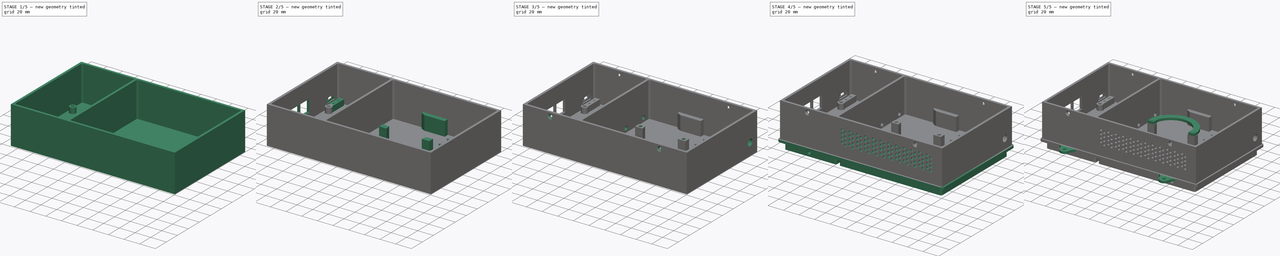
[diagram: build sequence overview — one tinted view per stage of 5, left to right]
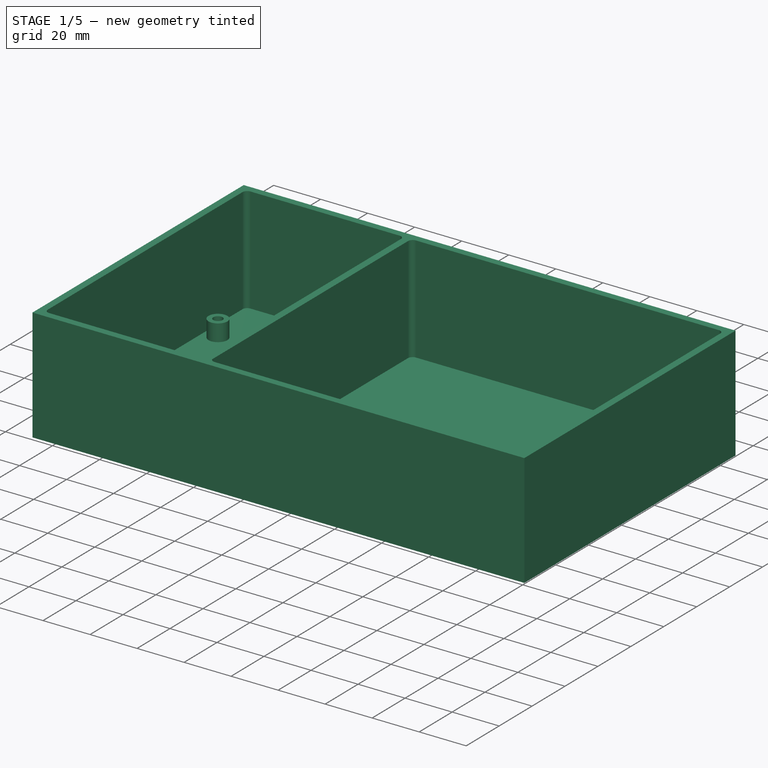
[diagram: stage 1 of 5 — iso view after this stage's code; geometry added in this stage tinted green]
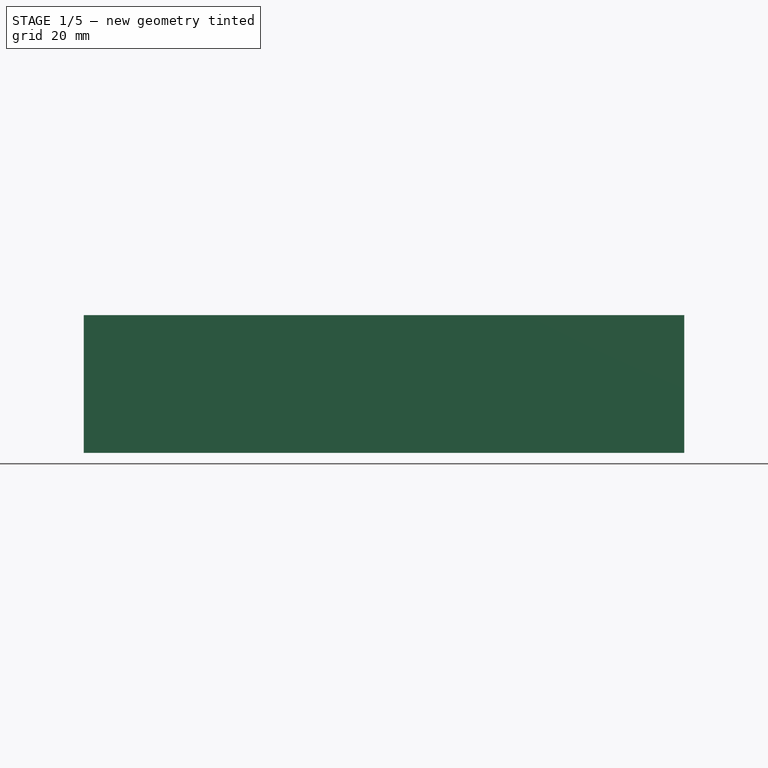
[diagram: stage 1 of 5 — front view after this stage's code; geometry added in this stage tinted green]
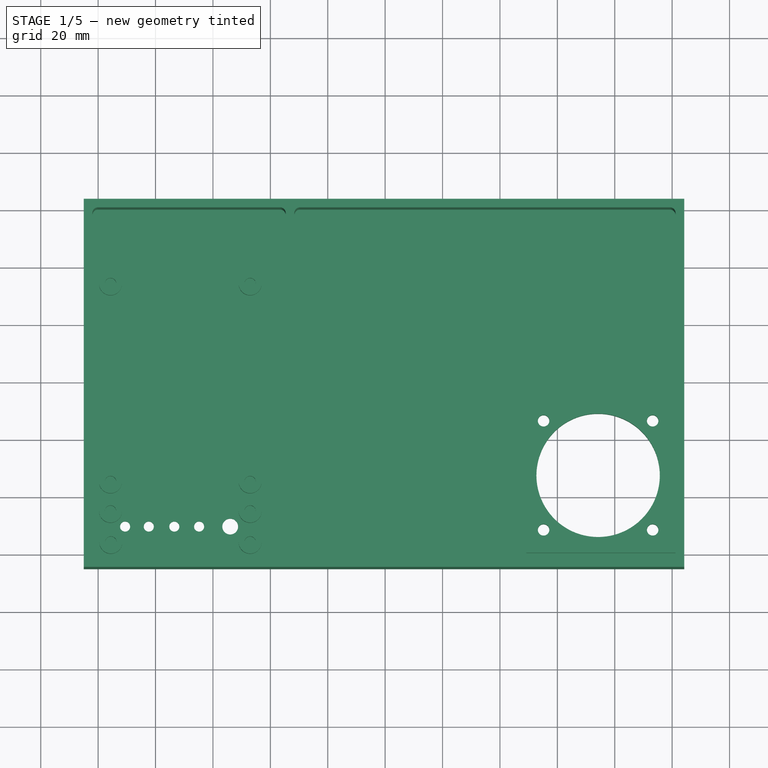
[diagram: stage 1 of 5 — top view after this stage's code; geometry added in this stage tinted green]
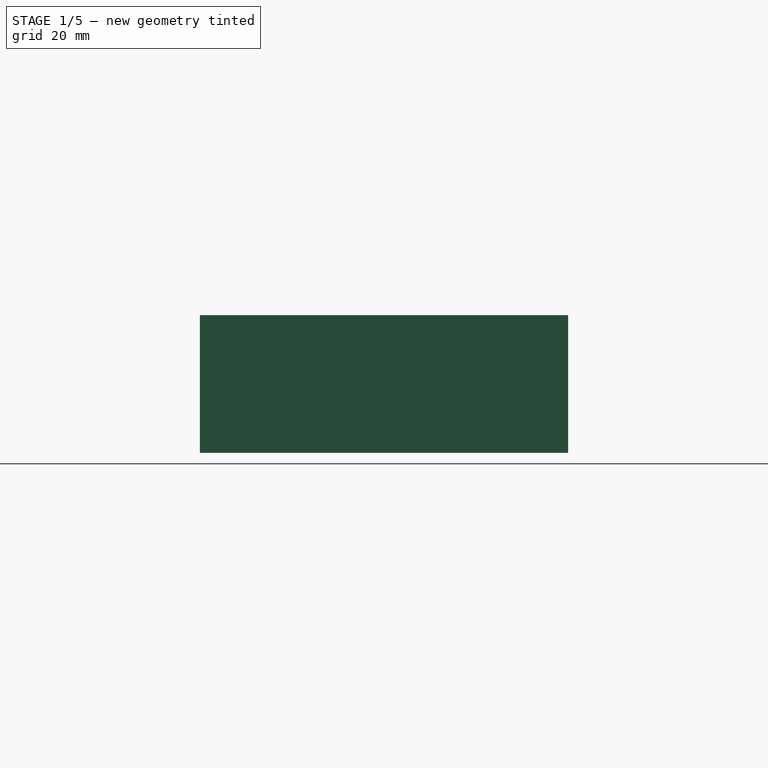
[diagram: stage 1 of 5 — right view after this stage's code; geometry added in this stage tinted green]
FCSTD DOCUMENT  (FreeCAD 0.20R29410 (Git))
Label: Dewair_gross_V2
License: All rights reserved
LicenseURL: http://en.wikipedia.org/wiki/All_rights_reserved
objects: Sketcher::SketchObject×31, PartDesign::Pad×14, PartDesign::Pocket×11, PartDesign::ShapeBinder×8, Part::Feature×6, PartDesign::Body×4, PartDesign::Hole×3, PartDesign::Plane×3, PartDesign::Mirrored×3, PartDesign::Fillet×3, App::FeaturePython×1, Part::Compound×1, PartDesign::Boolean×1, PartDesign::SubtractivePipe×1, PartDesign::MultiTransform×1, PartDesign::LinearPattern×1
note: 123 computed .brp shape members not serialized (recipe doc carries the construction recipe); baked Part::Feature solids carry a one-line shape summary decoded from their .brp

FEATURE [App::FeaturePython] dd  # WARN: FeaturePython — macro-defined, semantics opaque (R4)
  DynamicData = Created with DynamicData (v2.46) workbench. | This is a simple container object built | for holding custom properties.
  ddBoolHasS0 = true
  ddBoolHasS1 = true
  ddBoolHasThreads = true
  ddCordChannel = 15.6
  ddCoverBoltDist = 32
  ddCoverInset = 10
  ddHeight = 45
  ddInsetWidth = 3
  ddPCBlift = 7.2
  ddPCblockHeight = 16
  ddPowerCord = 8.5
  ddScrewhole = 4
  ddSlack = 2
  ddWall = 3
  expr: ddCordChannel = ddWall + ddPCblockHeight - 0.8 * ddPowerCord / 2
  expr: ddScrewhole = ddBoolHasThreads == True ? 4mm : 2.2mm
FEATURE [Part::Feature] Feature  label="DewAir"
  Placement = pos=(28.575,49.152,10.2) rot=(0,0,-1;1.5708rad)
  shape: bbox 57.15 x 98.3 x 1.6 mm, 178 faces (baked)
  expr: .Placement.Base.z = dd.ddWall + dd.ddPCBlift
FEATURE [Part::Feature] Solid  label="Socket"
  Placement = pos=(174.2,27.6,-3) rot=(1,0,0;3.14159rad)
  shape: bbox 50.33 x 50.33 x 39.7 mm, 74 faces (baked)
FEATURE [Part::Feature] Solid001  label="PowerSupply"
  Placement = pos=(166.1,118.3,0) rot=(0,0,1;1.5708rad)
  shape: bbox 89.5 x 54 x 18 mm, 40 faces (baked)
FEATURE [Part::Feature] Solid002  label="SSR"
  Placement = pos=(105.6,25.1,0) rot=(0,0,1;3.14159rad)
  shape: bbox 58 x 44.5 x 33 mm, 27 faces (baked)
FEATURE [Part::Feature] Solid003  label="WAGO"
  Placement = pos=(196.5,81.1,0.6) rot=(0,0,1;1.5708rad)
  shape: bbox 31 x 19 x 20.7 mm, 57 faces (baked)
FEATURE [Part::Compound] Compound
  Links = -> [Solid,Solid001,Solid002]
  Placement = pos=(0,0,3) rot=(0,0,1;0rad)
  expr: .Placement.Base.z = dd.ddWall
FEATURE [PartDesign::ShapeBinder] ShapeBinder  label="SB_SSR"
  Support = -> [Compound]
  TraceSupport = false
FEATURE [PartDesign::ShapeBinder] ShapeBinder001  label="SB_Socket"
  Support = -> [Compound]
  TraceSupport = false
FEATURE [PartDesign::ShapeBinder] ShapeBinder003  label="SB_Power"
  Placement = pos=(166.1,118.3,3) rot=(0,0,1;1.5708rad)
  Support = -> [Compound]
  TraceSupport = false
FEATURE [PartDesign::ShapeBinder] ShapeBinder004  label="SB_PCB"
  Support = -> [Feature]
  TraceSupport = false
FEATURE [Sketcher::SketchObject] Sketch001
  ExternalGeometry = -> [ShapeBinder003,ShapeBinder001]
  FullyConstrained = true
  MapMode = 5
  Support = -> [XY_Plane]
  expr: Constraints[10] = dd.ddWall + dd.ddSlack
  expr: Constraints[11] = dd.ddWall + dd.ddSlack
  expr: Constraints[8] = dd.ddWall + dd.ddSlack
  expr: Constraints[9] = dd.ddWall + dd.ddSlack
  sketch-geometry (4):
    g0: LineSegment StartX=-5 StartY=123.3 StartZ=0 EndX=204.2 EndY=123.3 EndZ=0
    g1: LineSegment StartX=204.2 StartY=123.3 StartZ=0 EndX=204.2 EndY=-5 EndZ=0
    g2: LineSegment StartX=204.2 StartY=-5 StartZ=0 EndX=-5 EndY=-5 EndZ=0
    g3: LineSegment StartX=-5 StartY=-5 StartZ=0 EndX=-5 EndY=123.3 EndZ=0
  constraints (14):
    c: Coincident(g0,g1)
    c: Coincident(g1,g2)
    c: Coincident(g2,g3)
    c: Coincident(g3,g0)
    c: Horizontal(g0)
    c: Horizontal(g2)
    c: Vertical(g1)
    c: Vertical(g3)
    c: DistanceX(g2,g-1) = 5
    c: DistanceY(g2,g-1) = 5
    c: DistanceX(g-4,g1) = 5
    c: DistanceY(g-3,g0) = 5
    c: DistanceX(g-1,g0) = 204.2  'Xplus'
    c: DistanceY(g-1,g0) = 123.3  'Yplus'
FEATURE [PartDesign::Pad] Pad  label="Bottom"
  Direction = (0,0,1)
  Length = 3
  Length2 = 10
  Profile = -> Sketch001
  ReferenceAxis = -> Sketch001 [N_Axis]
  Type = 0
  expr: Length = dd.ddWall
FEATURE [Sketcher::SketchObject] Sketch
  AttachmentOffset = pos=(0,0,3) rot=(0,0,1;0rad)
  ExternalGeometry = -> [Pad,ShapeBinder004,ShapeBinder]
  FullyConstrained = true
  MapMode = 5
  Placement = pos=(0,0,3) rot=(0,0,1;0rad)
  Support = -> [XY_Plane]
  expr: .AttachmentOffset.Base.z = dd.ddWall
  expr: Constraints[51] = dd.ddWall
  expr: Constraints[52] = dd.ddWall
  expr: Constraints[53] = dd.ddWall
  expr: Constraints[54] = dd.ddWall
  expr: Constraints[55] = dd.ddWall
  sketch-geometry (22):
    g0: LineSegment StartX=-5 StartY=123.3 StartZ=0 EndX=204.2 EndY=123.3 EndZ=0
    g1: LineSegment StartX=204.2 StartY=123.3 StartZ=0 EndX=204.2 EndY=-5 EndZ=0
    g2: LineSegment StartX=204.2 StartY=-5 StartZ=0 EndX=-5 EndY=-5 EndZ=0
    g3: LineSegment StartX=-5 StartY=-5 StartZ=0 EndX=-5 EndY=123.3 EndZ=0
    g4: LineSegment StartX=0 StartY=120.3 StartZ=0 EndX=63.375 EndY=120.3 EndZ=0
    g5: LineSegment StartX=65.375 StartY=118.3 StartZ=0 EndX=65.375 EndY=0 EndZ=0
    g6: LineSegment StartX=63.375 StartY=-2 StartZ=0 EndX=0 EndY=-2 EndZ=0
    g7: LineSegment StartX=-2 StartY=7.3e-15 StartZ=0 EndX=-2 EndY=118.3 EndZ=0
    g8: LineSegment StartX=70.375 StartY=-2 StartZ=0 EndX=199.2 EndY=-2 EndZ=0
    g9: LineSegment StartX=201.2 StartY=6.6e-15 StartZ=0 EndX=201.2 EndY=118.3 EndZ=0
    g10: LineSegment StartX=199.2 StartY=120.3 StartZ=0 EndX=70.375 EndY=120.3 EndZ=0
    g11: LineSegment StartX=68.375 StartY=118.3 StartZ=0 EndX=68.375 EndY=1.42e-14 EndZ=0
    g12: LineSegment StartX=57.15 StartY=7.1e-15 StartZ=0 EndX=65.375 EndY=7.1e-15 EndZ=0
    g13: LineSegment StartX=76.6 StartY=2.85 StartZ=0 EndX=68.375 EndY=2.85 EndZ=0
    g14: ArcOfCircle CenterX=-1e-16 CenterY=118.3 CenterZ=0 NormalX=0 NormalY=0 NormalZ=1 AngleXU=0 Radius=2 StartAngle=1.5708 EndAngle=3.14159
    g15: ArcOfCircle CenterX=63.375 CenterY=118.3 CenterZ=0 NormalX=0 NormalY=0 NormalZ=1 AngleXU=0 Radius=2 StartAngle=8e-16 EndAngle=1.5708
    g16: ArcOfCircle CenterX=70.375 CenterY=118.3 CenterZ=0 NormalX=0 NormalY=0 NormalZ=1 AngleXU=0 Radius=2 StartAngle=1.5708 EndAngle=3.14159
    g17: ArcOfCircle CenterX=0 CenterY=7.1e-15 CenterZ=0 NormalX=0 NormalY=0 NormalZ=1 AngleXU=0 Radius=2 StartAngle=3.14159 EndAngle=4.71239
    g18: ArcOfCircle CenterX=63.375 CenterY=7.1e-15 CenterZ=0 NormalX=0 NormalY=0 NormalZ=1 AngleXU=0 Radius=2 StartAngle=4.71239 EndAngle=6.28319
    g19: ArcOfCircle CenterX=70.375 CenterY=7e-15 CenterZ=0 NormalX=0 NormalY=0 NormalZ=1 AngleXU=0 Radius=2 StartAngle=3.14159 EndAngle=4.71239
    g20: ArcOfCircle CenterX=199.2 CenterY=7.1e-15 CenterZ=0 NormalX=0 NormalY=0 NormalZ=1 AngleXU=0 Radius=2 StartAngle=4.71239 EndAngle=6.28319
    g21: ArcOfCircle CenterX=199.2 CenterY=118.3 CenterZ=0 NormalX=0 NormalY=0 NormalZ=1 AngleXU=0 Radius=2 StartAngle=1.3e-15 EndAngle=1.5708
  constraints (57):
    c: Coincident(g0,g1)
    c: Coincident(g1,g2)
    c: Coincident(g2,g3)
    c: Coincident(g3,g0)
    c: Horizontal(g0)
    c: Horizontal(g2)
    c: Vertical(g1)
    c: Vertical(g3)
    c: Coincident(g0,g-3)
    c: Coincident(g1,g-4)
    c: Horizontal(g4)
    c: Horizontal(g6)
    c: Vertical(g5)
    c: Vertical(g7)
    c: Horizontal(g8)
    c: Horizontal(g10)
    c: Vertical(g9)
    c: Vertical(g11)
    c: Coincident(g12,g-5)
    c: PointOnObject(g12,g5)
    c: Horizontal(g12)
    c: Coincident(g13,g-6)
    c: PointOnObject(g13,g11)
    c: Horizontal(g13)
    c: Equal(g12,g13)
    c: Tangent(g7,g14) = 1.5708
    c: Tangent(g4,g14) = 1.5708
    c: Tangent(g4,g15) = 1.5708
    c: Tangent(g5,g15) = 1.5708
    c: Tangent(g11,g16) = -1.5708
    c: Tangent(g10,g16) = -1.5708
    c: Tangent(g7,g17) = 1.5708
    c: Tangent(g6,g17) = 1.5708
    c: Tangent(g6,g18) = 1.5708
    c: Tangent(g5,g18) = 1.5708
    c: Tangent(g8,g19) = -1.5708
    c: Tangent(g11,g19) = -1.5708
    c: Tangent(g9,g20) = -1.5708
    c: Tangent(g8,g20) = -1.5708
    c: Tangent(g10,g21) = -1.5708
    c: Tangent(g9,g21) = -1.5708
    c: Equal(g14,g15)
    c: Equal(g15,g16)
    c: Equal(g16,g21)
    c: Equal(g21,g20)
    c: Equal(g20,g18)
    c: Equal(g18,g19)
    c: Equal(g19,g17)
    c: Diameter(g17) = 4
    c: Horizontal(g6,g8)
    c: Horizontal(g4,g10)
    c: DistanceX(g5,g11) = 3
    c: DistanceX(g0,g7) = 3
    c: DistanceY(g4,g0) = 3
    c: DistanceX(g9,g1) = 3
    c: DistanceY(g1,g8) = 3
    c: DistanceX(g17,g13) = 68.375  'InnerFace'
FEATURE [PartDesign::Pad] Pad001  label="Walls"
  BaseFeature = -> Pad
  Direction = (0,0,1)
  Length = 45
  Length2 = 10
  Profile = -> Sketch
  ReferenceAxis = -> Sketch [N_Axis]
  Type = 0
  expr: Length = dd.ddHeight
FEATURE [Sketcher::SketchObject] Sketch002
  AttachmentOffset = pos=(0,0,3) rot=(0,0,1;0rad)
  ExternalGeometry = -> [ShapeBinder004]
  FullyConstrained = true
  MapMode = 5
  Placement = pos=(0,0,3) rot=(0,0,1;0rad)
  Support = -> [XY_Plane]
  expr: .AttachmentOffset.Base.z = dd.ddWall
  sketch-geometry (5):
    g0: Circle CenterX=9.398 CenterY=9.836 CenterZ=0 NormalX=0 NormalY=0 NormalZ=1 AngleXU=0 Radius=1.75
    g1: Circle CenterX=17.653 CenterY=9.836 CenterZ=0 NormalX=0 NormalY=0 NormalZ=1 AngleXU=0 Radius=1.75
    g2: Circle CenterX=26.543 CenterY=9.836 CenterZ=0 NormalX=0 NormalY=0 NormalZ=1 AngleXU=0 Radius=1.75
    g3: Circle CenterX=35.179 CenterY=9.836 CenterZ=0 NormalX=0 NormalY=0 NormalZ=1 AngleXU=0 Radius=1.75
    g4: Circle CenterX=46.01 CenterY=9.831 CenterZ=0 NormalX=0 NormalY=0 NormalZ=1 AngleXU=0 Radius=2.75
  constraints (10):
    c: Equal(g0,g1)
    c: Equal(g1,g2)
    c: Equal(g2,g3)
    c: Diameter(g0) = 3.5
    c: Symmetric(g-3,g-4,g0)
    c: Symmetric(g-6,g-5,g1)
    c: Symmetric(g-8,g-7,g2)
    c: Symmetric(g-9,g-10,g3)
    c: Symmetric(g-12,g-11,g4)
    c: Diameter(g4) = 5.5
FEATURE [PartDesign::Pocket] Pocket  label="LED_SW"
  BaseFeature = -> Pad001
  Direction = (0,0,-1)
  Length = 3
  Length2 = 5
  Profile = -> Sketch002
  ReferenceAxis = -> Sketch002 [N_Axis]
  Type = 0
  expr: Length = dd.ddWall
FEATURE [Sketcher::SketchObject] Sketch003
  ExternalGeometry = -> [ShapeBinder001]
  FullyConstrained = true
  MapMode = 5
  Support = -> [XY_Plane]
  sketch-geometry (6):
    g0: Circle CenterX=174.2 CenterY=27.6 CenterZ=0 NormalX=0 NormalY=0 NormalZ=1 AngleXU=0 Radius=21.5
    g1: Circle CenterX=193.2 CenterY=46.6 CenterZ=0 NormalX=0 NormalY=0 NormalZ=1 AngleXU=0 Radius=2
    g2: Circle CenterX=155.2 CenterY=46.6 CenterZ=0 NormalX=0 NormalY=0 NormalZ=1 AngleXU=0 Radius=2
    g3: Circle CenterX=155.2 CenterY=8.6 CenterZ=0 NormalX=0 NormalY=0 NormalZ=1 AngleXU=0 Radius=2
    g4: Circle CenterX=193.2 CenterY=8.6 CenterZ=0 NormalX=0 NormalY=0 NormalZ=1 AngleXU=0 Radius=2
    g5: LineSegment StartX=174.2 StartY=27.6 StartZ=0 EndX=162.517 EndY=45.35 EndZ=0
  constraints (13):
    c: Coincident(g0,g-3)
    c: Coincident(g1,g-5)
    c: Coincident(g2,g-4)
    c: Coincident(g3,g-7)
    c: Coincident(g4,g-6)
    c: Equal(g4,g3)
    c: Equal(g3,g2)
    c: Equal(g2,g1)
    c: Diameter(g4) = 4
    c: Coincident(g5,g0)
    c: Coincident(g5,g-3)
    c: Distance(g5) = 21.25  'Dic'
    c: Diameter(g0) = 43
FEATURE [Sketcher::SketchObject] Sketch004
  AttachmentOffset = pos=(0,0,3) rot=(0,0,1;0rad)
  ExternalGeometry = -> [ShapeBinder004]
  FullyConstrained = true
  MapMode = 5
  Placement = pos=(0,0,3) rot=(0,0,1;0rad)
  Support = -> [XY_Plane]
  expr: .AttachmentOffset.Base.z = dd.ddWall
  expr: Constraints[15] = dd.ddScrewhole + 4mm
  expr: Constraints[31] = dd.ddScrewhole
  sketch-geometry (16):
    g0: Circle CenterX=4.445 CenterY=4.324 CenterZ=0 NormalX=0 NormalY=0 NormalZ=1 AngleXU=0 Radius=4
    g1: Circle CenterX=4.318 CenterY=15.119 CenterZ=0 NormalX=0 NormalY=0 NormalZ=1 AngleXU=0 Radius=4
    g2: Circle CenterX=4.318 CenterY=25.363 CenterZ=0 NormalX=0 NormalY=0 NormalZ=1 AngleXU=0 Radius=4
    g3: Circle CenterX=4.318 CenterY=94.363 CenterZ=0 NormalX=0 NormalY=0 NormalZ=1 AngleXU=0 Radius=4
    g4: Circle CenterX=52.959 CenterY=94.363 CenterZ=0 NormalX=0 NormalY=0 NormalZ=1 AngleXU=0 Radius=4
    g5: Circle CenterX=52.959 CenterY=25.363 CenterZ=0 NormalX=0 NormalY=0 NormalZ=1 AngleXU=0 Radius=4
    g6: Circle CenterX=52.959 CenterY=15.119 CenterZ=0 NormalX=0 NormalY=0 NormalZ=1 AngleXU=0 Radius=4
    g7: Circle CenterX=52.959 CenterY=4.324 CenterZ=0 NormalX=0 NormalY=0 NormalZ=1 AngleXU=0 Radius=4
    g8: Circle CenterX=4.318 CenterY=94.363 CenterZ=0 NormalX=0 NormalY=0 NormalZ=1 AngleXU=0 Radius=2
    g9: Circle CenterX=52.959 CenterY=94.363 CenterZ=0 NormalX=0 NormalY=0 NormalZ=1 AngleXU=0 Radius=2
    g10: Circle CenterX=4.318 CenterY=25.363 CenterZ=0 NormalX=0 NormalY=0 NormalZ=1 AngleXU=0 Radius=2
    g11: Circle CenterX=52.959 CenterY=25.363 CenterZ=0 NormalX=0 NormalY=0 NormalZ=1 AngleXU=0 Radius=2
    g12: Circle CenterX=52.959 CenterY=15.119 CenterZ=0 NormalX=0 NormalY=0 NormalZ=1 AngleXU=0 Radius=2
    g13: Circle CenterX=52.959 CenterY=4.324 CenterZ=0 NormalX=0 NormalY=0 NormalZ=1 AngleXU=0 Radius=2
    g14: Circle CenterX=4.318 CenterY=15.119 CenterZ=0 NormalX=0 NormalY=0 NormalZ=1 AngleXU=0 Radius=2
    g15: Circle CenterX=4.445 CenterY=4.324 CenterZ=0 NormalX=0 NormalY=0 NormalZ=1 AngleXU=0 Radius=2
  constraints (32):
    c: Coincident(g0,g-3)
    c: Coincident(g1,g-4)
    c: Coincident(g2,g-5)
    c: Coincident(g3,g-10)
    c: Coincident(g4,g-9)
    c: Coincident(g5,g-6)
    c: Coincident(g6,g-7)
    c: Coincident(g7,g-8)
    c: Equal(g3,g4)
    c: Equal(g4,g2)
    c: Equal(g2,g5)
    c: Equal(g5,g1)
    c: Equal(g1,g6)
    c: Equal(g6,g0)
    c: Equal(g0,g7)
    c: Diameter(g4) = 8
    c: Coincident(g8,g3)
    c: Coincident(g9,g4)
    c: Coincident(g10,g2)
    c: Coincident(g11,g5)
    c: Coincident(g12,g6)
    c: Coincident(g13,g7)
    c: Coincident(g14,g1)
    c: Coincident(g15,g0)
    c: Equal(g9,g8)
    c: Equal(g8,g10)
    c: Equal(g10,g11)
    c: Equal(g11,g12)
    c: Equal(g12,g13)
    c: Equal(g13,g14)
    c: Equal(g14,g15)
    c: Diameter(g8) = 4
FEATURE [Sketcher::SketchObject] Sketch005
  AttachmentOffset = pos=(0,0,-2) rot=(0,0,1;0rad)
  ExternalGeometry = -> [ShapeBinder004]
  FullyConstrained = true
  MapMode = 5
  Placement = pos=(-2,4e-16,-4e-16) rot=(0.57735,0.57735,0.57735;2.0944rad)
  Support = -> [YZ_Plane]
  expr: .AttachmentOffset.Base.z = -dd.ddSlack - (dd.ddBoolHasS1 == True ? 0mm : 5mm)
  sketch-geometry (5):
    g0: LineSegment StartX=50.384 StartY=27.3 StartZ=0 EndX=34.384 EndY=27.3 EndZ=0
    g1: LineSegment StartX=34.384 StartY=27.3 StartZ=0 EndX=34.384 EndY=11.8 EndZ=0
    g2: LineSegment StartX=34.384 StartY=11.8 StartZ=0 EndX=50.384 EndY=11.8 EndZ=0
    g3: LineSegment StartX=50.384 StartY=11.8 StartZ=0 EndX=50.384 EndY=27.3 EndZ=0
    g4: GeomPoint X=42.384 Y=11.8 Z=0
  constraints (12):
    c: Coincident(g0,g1)
    c: Coincident(g1,g2)
    c: Coincident(g2,g3)
    c: Coincident(g3,g0)
    c: Horizontal(g0)
    c: Horizontal(g2)
    c: Vertical(g1)
    c: Vertical(g3)
    c: DistanceX(g0,g0) = 16
    c: DistanceY(g1,g1) = 15.5
    c: Symmetric(g-3,g-3,g4)
    c: Symmetric(g1,g2,g4)
FEATURE [Sketcher::SketchObject] Sketch006
  AttachmentOffset = pos=(0,0,-2) rot=(0,0,1;0rad)
  ExternalGeometry = -> [ShapeBinder004]
  FullyConstrained = true
  MapMode = 5
  Placement = pos=(-2,4e-16,-4e-16) rot=(0.57735,0.57735,0.57735;2.0944rad)
  Support = -> [YZ_Plane]
  expr: .AttachmentOffset.Base.z = -dd.ddSlack - (dd.ddBoolHasS0 == True ? 0mm : 5mm)
  sketch-geometry (5):
    g0: LineSegment StartX=67.95 StartY=27.3 StartZ=0 EndX=51.95 EndY=27.3 EndZ=0
    g1: LineSegment StartX=51.95 StartY=27.3 StartZ=0 EndX=51.95 EndY=11.8 EndZ=0
    g2: LineSegment StartX=51.95 StartY=11.8 StartZ=0 EndX=67.95 EndY=11.8 EndZ=0
    g3: LineSegment StartX=67.95 StartY=11.8 StartZ=0 EndX=67.95 EndY=27.3 EndZ=0
    g4: GeomPoint X=59.95 Y=11.8 Z=0
  constraints (12):
    c: Coincident(g0,g1)
    c: Coincident(g1,g2)
    c: Coincident(g2,g3)
    c: Coincident(g3,g0)
    c: Horizontal(g0)
    c: Horizontal(g2)
    c: Vertical(g1)
    c: Vertical(g3)
    c: DistanceX(g0,g0) = 16
    c: DistanceY(g1,g1) = 15.5
    c: Symmetric(g-3,g-3,g4)
    c: Symmetric(g1,g2,g4)
FEATURE [Part::Feature] Solid004  label="USB port"
  Placement = pos=(4.2,107.4,10.2) rot=(0,0,1;1.5708rad)
  shape: bbox 15 x 13 x 4.1 mm, 20 faces (baked)
  expr: .Placement.Base.z = dd.ddWall + dd.ddPCBlift
FEATURE [PartDesign::ShapeBinder] ShapeBinder005  label="SB_USB"
  Support = -> [Solid004]
  TraceSupport = false
FEATURE [Sketcher::SketchObject] Sketch007
  AttachmentOffset = pos=(0,0,-2) rot=(0,0,1;0rad)
  ExternalGeometry = -> [ShapeBinder005]
  FullyConstrained = true
  MapMode = 5
  Placement = pos=(-2,4e-16,-4e-16) rot=(0.57735,0.57735,0.57735;2.0944rad)
  Support = -> [YZ_Plane]
  expr: .AttachmentOffset.Base.z = -dd.ddSlack
  sketch-geometry (6):
    g0: LineSegment StartX=112.15 StartY=15.3 StartZ=0 EndX=102.65 EndY=15.3 EndZ=0
    g1: LineSegment StartX=102.65 StartY=15.3 StartZ=0 EndX=102.65 EndY=10.8 EndZ=0
    g2: LineSegment StartX=102.65 StartY=10.8 StartZ=0 EndX=112.15 EndY=10.8 EndZ=0
    g3: LineSegment StartX=112.15 StartY=10.8 StartZ=0 EndX=112.15 EndY=15.3 EndZ=0
    g4: LineSegment StartX=103.65 StartY=14.3 StartZ=0 EndX=111.15 EndY=11.8 EndZ=0
    g5: GeomPoint X=107.4 Y=13.05 Z=0
  constraints (14):
    c: Coincident(g0,g1)
    c: Coincident(g1,g2)
    c: Coincident(g2,g3)
    c: Coincident(g3,g0)
    c: Horizontal(g0)
    c: Horizontal(g2)
    c: Vertical(g1)
    c: Vertical(g3)
    c: Coincident(g4,g-3)
    c: Coincident(g4,g-6)
    c: Symmetric(g4,g4,g5)
    c: Symmetric(g0,g2,g5)
    c: DistanceX(g0,g4) = 1
    c: DistanceY(g4,g0) = 1
FEATURE [Sketcher::SketchObject] Sketch008
  AttachmentOffset = pos=(0,0,3) rot=(0,0,1;0rad)
  ExternalGeometry = -> [ShapeBinder005]
  FullyConstrained = true
  MapMode = 5
  Placement = pos=(0,0,3) rot=(0,0,1;0rad)
  Support = -> [XY_Plane]
  expr: .AttachmentOffset.Base.z = dd.ddWall
  sketch-geometry (7):
    g0: LineSegment StartX=1.2 StartY=117.8 StartZ=0 EndX=7.6 EndY=117.8 EndZ=0
    g1: LineSegment StartX=7.6 StartY=117.8 StartZ=0 EndX=7.6 EndY=97 EndZ=0
    g2: LineSegment StartX=7.6 StartY=97 StartZ=0 EndX=1.2 EndY=97 EndZ=0
    g3: LineSegment StartX=1.2 StartY=97 StartZ=0 EndX=1.2 EndY=117.8 EndZ=0
    g4: GeomPoint X=4.4 Y=107.4 Z=0
    g5: Circle CenterX=4.4 CenterY=111.8 CenterZ=0 NormalX=0 NormalY=0 NormalZ=1 AngleXU=0 Radius=1.1
    g6: Circle CenterX=4.4 CenterY=103 CenterZ=0 NormalX=0 NormalY=0 NormalZ=1 AngleXU=0 Radius=1.1
  constraints (16):
    c: Coincident(g0,g1)
    c: Coincident(g1,g2)
    c: Coincident(g2,g3)
    c: Coincident(g3,g0)
    c: Horizontal(g0)
    c: Horizontal(g2)
    c: Vertical(g1)
    c: Vertical(g3)
    c: Symmetric(g-3,g-4,g4)
    c: Symmetric(g0,g1,g4)
    c: DistanceY(g-3,g0) = 6
    c: DistanceX(g-3,g0) = 3.2
    c: Coincident(g5,g-3)
    c: Coincident(g6,g-4)
    c: Equal(g5,g6)
    c: Diameter(g6) = 2.2
FEATURE [Sketcher::SketchObject] Sketch009
  AttachmentOffset = pos=(0,0,-2) rot=(0,0,1;0rad)
  ExternalGeometry = -> [ShapeBinder005]
  FullyConstrained = true
  MapMode = 5
  Placement = pos=(-2,4e-16,-4e-16) rot=(0.57735,0.57735,0.57735;2.0944rad)
  Support = -> [YZ_Plane]
  expr: .AttachmentOffset.Base.z = -dd.ddSlack
  sketch-geometry (5):
    g0: LineSegment StartX=114.9 StartY=9.2 StartZ=0 EndX=99.9 EndY=9.2 EndZ=0
    g1: LineSegment StartX=99.9 StartY=9.2 StartZ=0 EndX=99.9 EndY=12.8 EndZ=0
    g2: LineSegment StartX=99.9 StartY=12.8 StartZ=0 EndX=114.9 EndY=12.8 EndZ=0
    g3: LineSegment StartX=114.9 StartY=12.8 StartZ=0 EndX=114.9 EndY=9.2 EndZ=0
    g4: GeomPoint X=107.4 Y=11 Z=0
  constraints (12):
    c: Coincident(g0,g1)
    c: Coincident(g1,g2)
    c: Coincident(g2,g3)
    c: Coincident(g3,g0)
    c: Horizontal(g0)
    c: Horizontal(g2)
    c: Vertical(g1)
    c: Vertical(g3)
    c: Symmetric(g-4,g-5,g4)
    c: Symmetric(g0,g2,g4)
    c: DistanceX(g1,g-5) = 1
    c: DistanceY(g-5,g1) = 1
FEATURE [Sketcher::SketchObject] Sketch010
  AttachmentOffset = pos=(0,0,3) rot=(0,0,1;0rad)
  ExternalGeometry = -> [ShapeBinder]
  FullyConstrained = true
  MapMode = 5
  Placement = pos=(0,0,3) rot=(0,0,1;0rad)
  Support = -> [XY_Plane]
  expr: .AttachmentOffset.Base.z = dd.ddWall
  sketch-geometry (11):
    g0: LineSegment StartX=76.6 StartY=47.35 StartZ=0 EndX=134.6 EndY=47.35 EndZ=0
    g1: LineSegment StartX=134.6 StartY=47.35 StartZ=0 EndX=134.6 EndY=2.85 EndZ=0
    g2: LineSegment StartX=134.6 StartY=2.85 StartZ=0 EndX=76.6 EndY=2.85 EndZ=0
    g3: LineSegment StartX=76.6 StartY=2.85 StartZ=0 EndX=76.6 EndY=47.35 EndZ=0
    g4: LineSegment StartX=86.6 StartY=43.35 StartZ=0 EndX=125.1 EndY=43.35 EndZ=0
    g5: LineSegment StartX=125.1 StartY=43.35 StartZ=0 EndX=125.1 EndY=6.85 EndZ=0
    g6: LineSegment StartX=125.1 StartY=6.85 StartZ=0 EndX=86.6 EndY=6.85 EndZ=0
    g7: LineSegment StartX=86.6 StartY=6.85 StartZ=0 EndX=86.6 EndY=43.35 EndZ=0
    g8: Circle CenterX=81.6 CenterY=25.1 CenterZ=0 NormalX=0 NormalY=0 NormalZ=1 AngleXU=0 Radius=2
    g9: Circle CenterX=130.1 CenterY=25.1 CenterZ=0 NormalX=0 NormalY=0 NormalZ=1 AngleXU=0 Radius=2
    g10: GeomPoint X=105.85 Y=25.1 Z=0
  constraints (26):
    c: Coincident(g0,g1)
    c: Coincident(g1,g2)
    c: Coincident(g2,g3)
    c: Coincident(g3,g0)
    c: Horizontal(g0)
    c: Horizontal(g2)
    c: Vertical(g1)
    c: Vertical(g3)
    c: Coincident(g0,g-3)
    c: Coincident(g1,g-4)
    c: Coincident(g4,g5)
    c: Coincident(g5,g6)
    c: Coincident(g6,g7)
    c: Coincident(g7,g4)
    c: Horizontal(g4)
    c: Horizontal(g6)
    c: Vertical(g5)
    c: Vertical(g7)
    c: Coincident(g8,g-5)
    c: Coincident(g9,g-6)
    c: Equal(g9,g8)
    c: Diameter(g8) = 4
    c: DistanceX(g8,g4) = 5
    c: Symmetric(g8,g9,g10)
    c: Symmetric(g4,g5,g10)
    c: DistanceY(g4,g0) = 4
FEATURE [Sketcher::SketchObject] Sketch011
  AttachmentOffset = pos=(0,0,3) rot=(0,0,1;0rad)
  ExternalGeometry = -> [ShapeBinder001]
  FullyConstrained = true
  MapMode = 5
  Placement = pos=(0,0,3) rot=(0,0,1;0rad)
  Support = -> [XY_Plane]
  expr: .AttachmentOffset.Base.z = dd.ddWall
  expr: Constraints[10] = dd.ddSlack
  expr: Constraints[11] = dd.ddSlack
  sketch-geometry (4):
    g0: LineSegment StartX=149.2 StartY=52.6 StartZ=0 EndX=201.2 EndY=52.6 EndZ=0
    g1: LineSegment StartX=201.2 StartY=52.6 StartZ=0 EndX=201.2 EndY=0.6 EndZ=0
    g2: LineSegment StartX=201.2 StartY=0.6 StartZ=0 EndX=149.2 EndY=0.6 EndZ=0
    g3: LineSegment StartX=149.2 StartY=0.6 StartZ=0 EndX=149.2 EndY=52.6 EndZ=0
  constraints (12):
    c: Coincident(g0,g1)
    c: Coincident(g1,g2)
    c: Coincident(g2,g3)
    c: Coincident(g3,g0)
    c: Horizontal(g0)
    c: Horizontal(g2)
    c: Vertical(g1)
    c: Vertical(g3)
    c: PointOnObject(g-3,g0)
    c: PointOnObject(g-4,g3)
    c: DistanceY(g1,g-6) = 2
    c: DistanceX(g-5,g1) = 2
FEATURE [PartDesign::Pad] Pad005  label="Socket_support"
  BaseFeature = -> Pocket
  Direction = (0,0,1)
  Length = 6
  Length2 = 10
  Profile = -> Sketch011
  ReferenceAxis = -> Sketch011 [N_Axis]
  Type = 0
FEATURE [PartDesign::Pocket] Pocket001  label="Socket_holes"
  BaseFeature = -> Pad005
  Direction = (0,0,-1)
  Length = 3
  Length2 = 5
  Profile = -> Sketch003
  ReferenceAxis = -> Sketch003 [N_Axis]
  Reversed = true
  Type = 1
  expr: Length = dd.ddWall
FEATURE [PartDesign::Pad] Pad002  label="PCB_supports"
  BaseFeature = -> Pocket001
  Direction = (0,0,1)
  Length = 7.2
  Length2 = 10
  Profile = -> Sketch004
  ReferenceAxis = -> Sketch004 [N_Axis]
  Type = 0
  expr: Length = dd.ddPCBlift
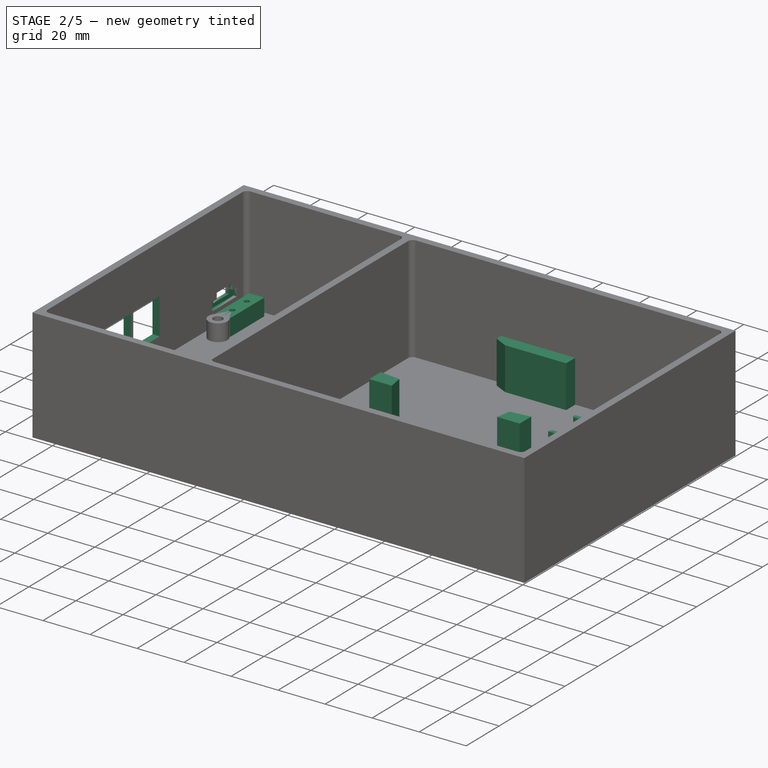
[diagram: stage 2 of 5 — iso view after this stage's code; geometry added in this stage tinted green]
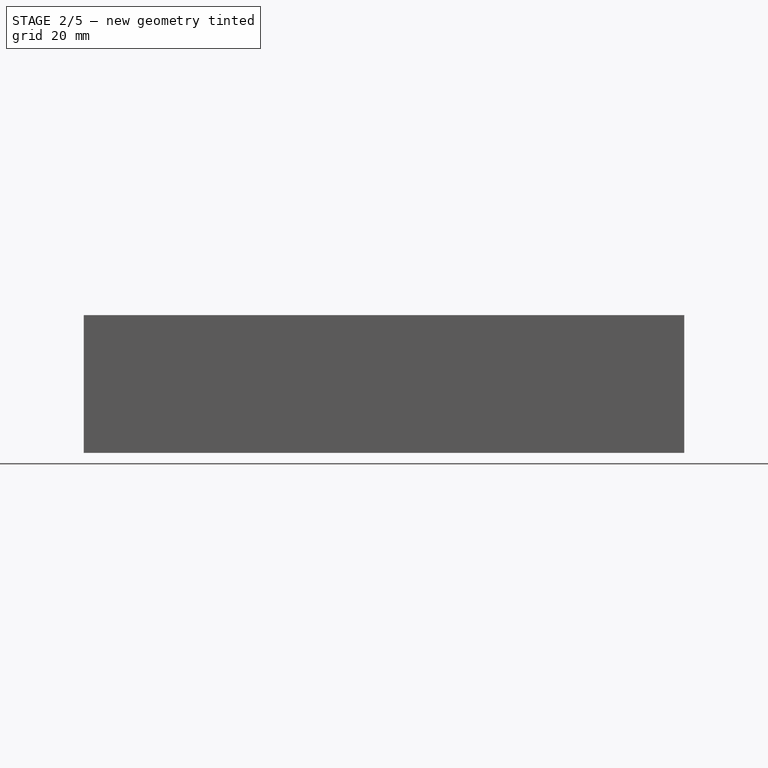
[diagram: stage 2 of 5 — front view after this stage's code; geometry added in this stage tinted green]
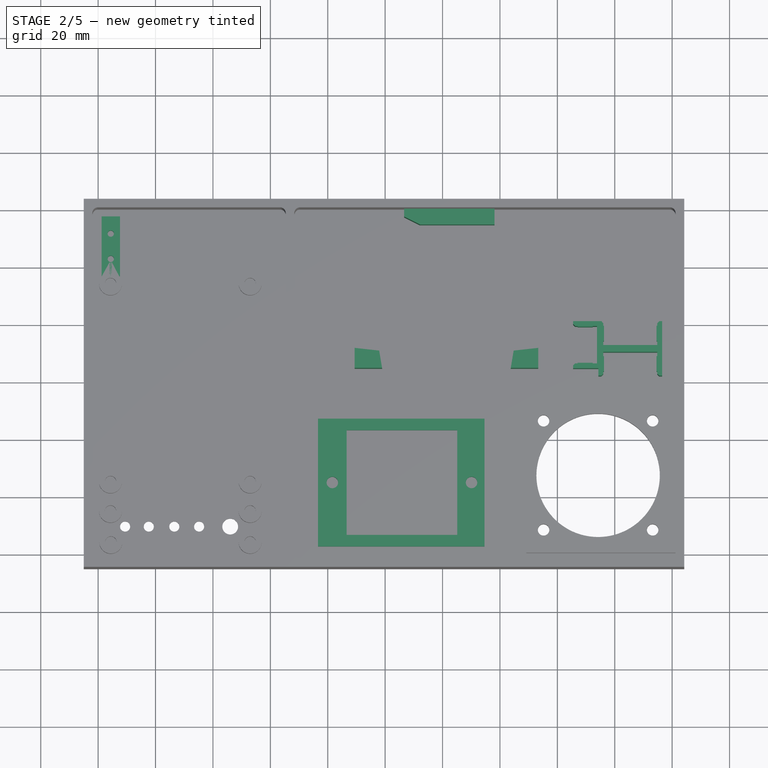
[diagram: stage 2 of 5 — top view after this stage's code; geometry added in this stage tinted green]
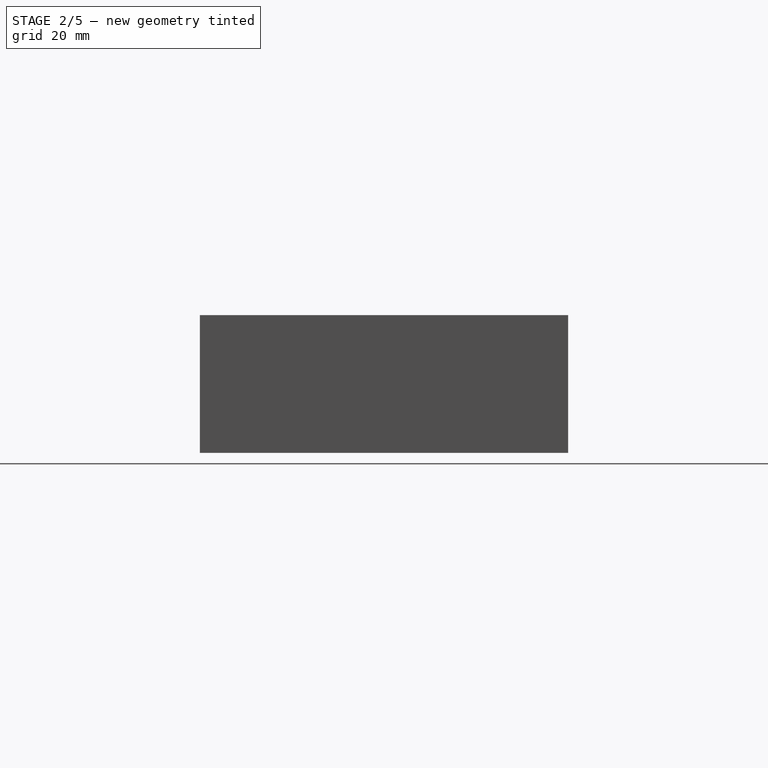
[diagram: stage 2 of 5 — right view after this stage's code; geometry added in this stage tinted green]
FEATURE [PartDesign::Pocket] Pocket002  label="S1Hole"
  BaseFeature = -> Pad002
  Direction = (-1,2e-16,-3e-16)
  Length = 3
  Length2 = 5
  Profile = -> Sketch005
  ReferenceAxis = -> Sketch005 [N_Axis]
  Type = 0
  expr: Length = dd.ddWall
FEATURE [PartDesign::Pocket] Pocket003  label="S0Hole"
  BaseFeature = -> Pocket002
  Direction = (-1,2e-16,-3e-16)
  Length = 3
  Length2 = 5
  Profile = -> Sketch006
  ReferenceAxis = -> Sketch006 [N_Axis]
  Type = 0
  expr: Length = dd.ddWall
FEATURE [PartDesign::Pocket] Pocket004  label="USB_hole"
  BaseFeature = -> Pocket003
  Direction = (-1,2e-16,-3e-16)
  Length = 3
  Length2 = 5
  Profile = -> Sketch007
  ReferenceAxis = -> Sketch007 [N_Axis]
  Type = 0
  expr: Length = dd.ddWall
FEATURE [PartDesign::Pad] Pad003  label="USB_support"
  BaseFeature = -> Pocket004
  Direction = (0,0,1)
  Length = 7.2
  Length2 = 10
  Profile = -> Sketch008
  ReferenceAxis = -> Sketch008 [N_Axis]
  Type = 0
  expr: Length = dd.ddPCBlift
FEATURE [PartDesign::Pocket] Pocket005  label="USB_groove"
  BaseFeature = -> Pad003
  Direction = (-1,2e-16,-3e-16)
  Length = 1.5
  Length2 = 5
  Profile = -> Sketch009
  ReferenceAxis = -> Sketch009 [N_Axis]
  Type = 0
FEATURE [PartDesign::Pad] Pad004  label="SSR_support"
  BaseFeature = -> Pocket005
  Direction = (0,0,1)
  Length = 6
  Length2 = 10
  Profile = -> Sketch010
  ReferenceAxis = -> Sketch010 [N_Axis]
  Type = 0
FEATURE [PartDesign::Boolean] Boolean  label="WAGO_block"
  BaseFeature = -> Pad004
  Group = -> [Solid003]
  Refine = true
  Type = 0
FEATURE [Sketcher::SketchObject] Sketch012
  AttachmentOffset = pos=(0,0,-18) rot=(0,0,1;0rad)
  ExternalGeometry = -> [ShapeBinder003]
  FullyConstrained = true
  MapMode = 5
  Placement = pos=(166.1,118.3,21) rot=(0.707107,0.707107,0;3.14159rad)
  Support = -> [ShapeBinder003]
  expr: Constraints[44] = dd.ddSlack
  sketch-geometry (16):
    g0: LineSegment StartX=-46.5 StartY=-76.75 StartZ=0 EndX=-47.4528 EndY=-68.1745 EndZ=0
    g1: LineSegment StartX=-47.4528 StartY=-68.1745 StartZ=0 EndX=-53.5 EndY=-67.1667 EndZ=0
    g2: LineSegment StartX=-53.5 StartY=-67.1667 StartZ=0 EndX=-53.5 EndY=-76.75 EndZ=0
    g3: LineSegment StartX=-53.5 StartY=-76.75 StartZ=0 EndX=-46.5 EndY=-76.75 EndZ=0
    g4: GeomPoint X=-50 Y=-67.75 Z=0
    g5: LineSegment StartX=-46.5 StartY=-12.75 StartZ=0 EndX=-53.5 EndY=-12.75 EndZ=0
    g6: LineSegment StartX=-53.5 StartY=-12.75 StartZ=0 EndX=-53.5 EndY=-22.3333 EndZ=0
    g7: LineSegment StartX=-53.5 StartY=-22.3333 StartZ=0 EndX=-47.4528 EndY=-21.3255 EndZ=0
    g8: LineSegment StartX=-47.4528 StartY=-21.3255 StartZ=0 EndX=-46.5 EndY=-12.75 EndZ=0
    g9: GeomPoint X=-50 Y=-21.75 Z=0
    g10: LineSegment StartX=2 StartY=-28 StartZ=0 EndX=-3.5 EndY=-28 EndZ=0
    g11: LineSegment StartX=-3.5 StartY=-28 StartZ=0 EndX=-3.5 EndY=-54 EndZ=0
    g12: LineSegment StartX=2 StartY=-59.5 StartZ=0 EndX=2 EndY=-28 EndZ=0
    g13: LineSegment StartX=-3.5 StartY=-54 StartZ=0 EndX=-1.5 EndY=-58 EndZ=0
    g14: LineSegment StartX=-1.5 StartY=-58 StartZ=0 EndX=-0.75 EndY=-59.5 EndZ=0
    g15: LineSegment StartX=-0.75 StartY=-59.5 StartZ=0 EndX=2 EndY=-59.5 EndZ=0
  constraints (45):
    c: Coincident(g0,g1)
    c: Coincident(g1,g2)
    c: Vertical(g2)
    c: Coincident(g2,g3)
    c: Horizontal(g3)
    c: Coincident(g0,g3)
    c: DistanceX(g3,g3) = 7
    c: Horizontal(g-9,g0)
    c: DistanceX(g0,g-9) = 0.5
    c: Parallel(g0,g-9)
    c: Parallel(g1,g-8)
    c: PointOnObject(g4,g1)
    c: Vertical(g-8,g4)
    c: DistanceY(g4,g-8) = 0.5
    c: Horizontal(g5)
    c: Coincident(g5,g6)
    c: Vertical(g6)
    c: Coincident(g6,g7)
    c: Coincident(g7,g8)
    c: Coincident(g8,g5)
    c: Horizontal(g5,g-6)
    c: DistanceX(g5,g-6) = 0.5
    c: Parallel(g8,g-6)
    c: Parallel(g7,g-7)
    c: PointOnObject(g9,g7)
    c: Vertical(g9,g-7)
    c: DistanceY(g-7,g9) = 0.5
    c: Equal(g5,g3)
    c: Horizontal(g10)
    c: Coincident(g10,g11)
    c: Vertical(g11)
    c: Coincident(g11,g13)
    c: Coincident(g15,g12)
    c: Coincident(g12,g10)
    c: DistanceX(g-3,g10) = 0.5
    c: DistanceY(g10,g-4) = 0.5
    c: DistanceX(g-10,g13) = 0.5
    c: Horizontal(g-10,g13)
    c: Parallel(g13,g-10)
    c: Coincident(g14,g15)
    c: Horizontal(g15)
    c: Tangent(g13,g14) = -1.5708
    c: DistanceY(g-11,g14) = 0.5
    c: Vertical(g12)
    c: DistanceX(g-4,g10) = 2
FEATURE [PartDesign::Pad] Pad006  label="Power_supports"
  BaseFeature = -> Boolean
  Direction = (0,0,-1)
  Length = 18.5
  Length2 = 10
  Profile = -> Sketch012
  ReferenceAxis = -> Sketch012 [N_Axis]
  Type = 0
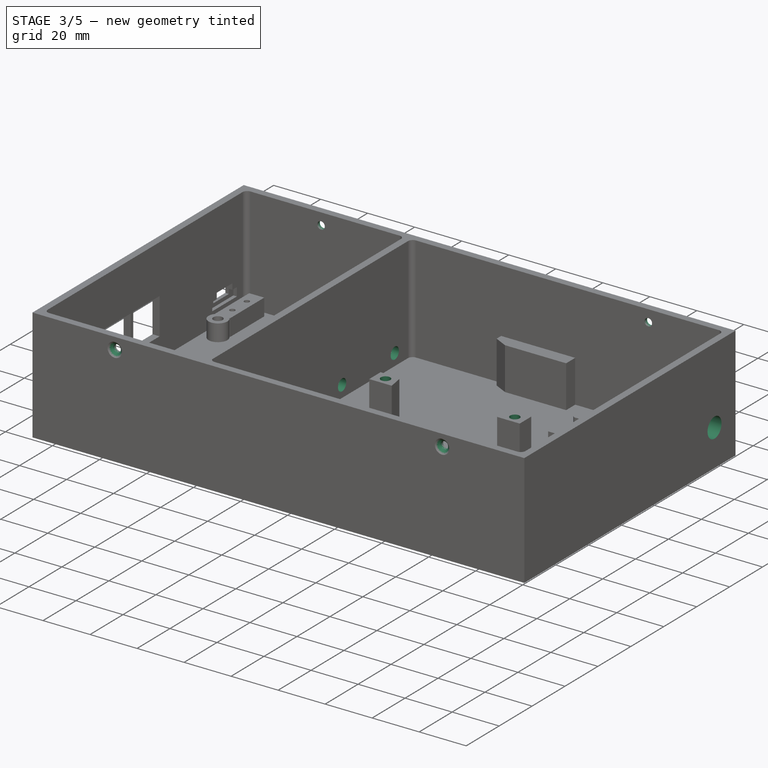
[diagram: stage 3 of 5 — iso view after this stage's code; geometry added in this stage tinted green]
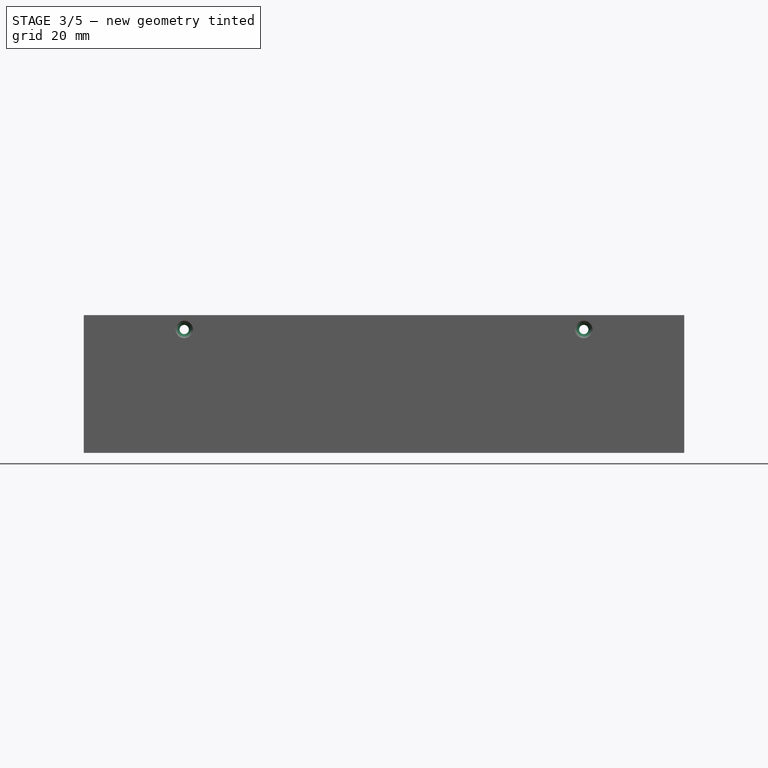
[diagram: stage 3 of 5 — front view after this stage's code; geometry added in this stage tinted green]
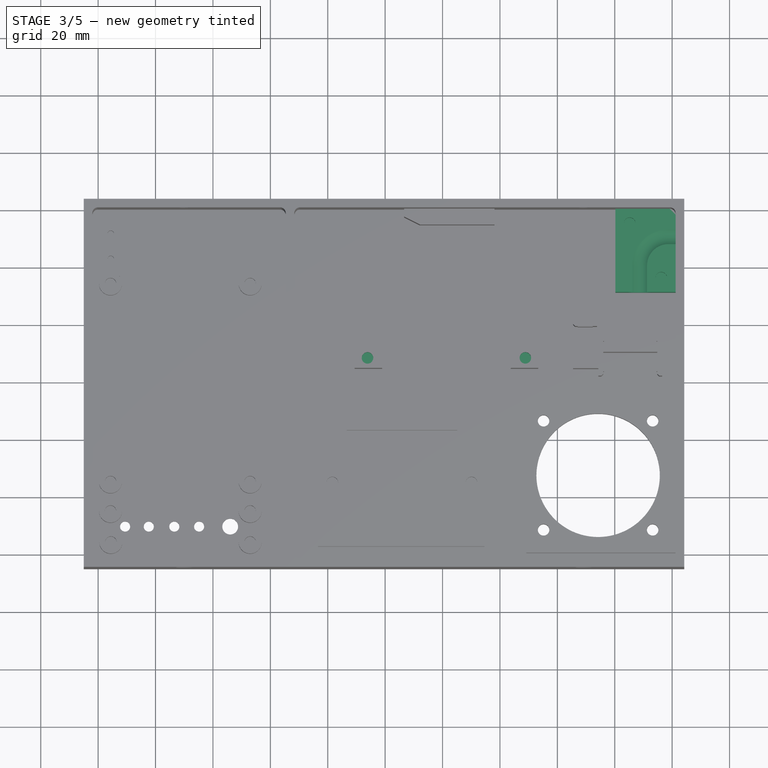
[diagram: stage 3 of 5 — top view after this stage's code; geometry added in this stage tinted green]
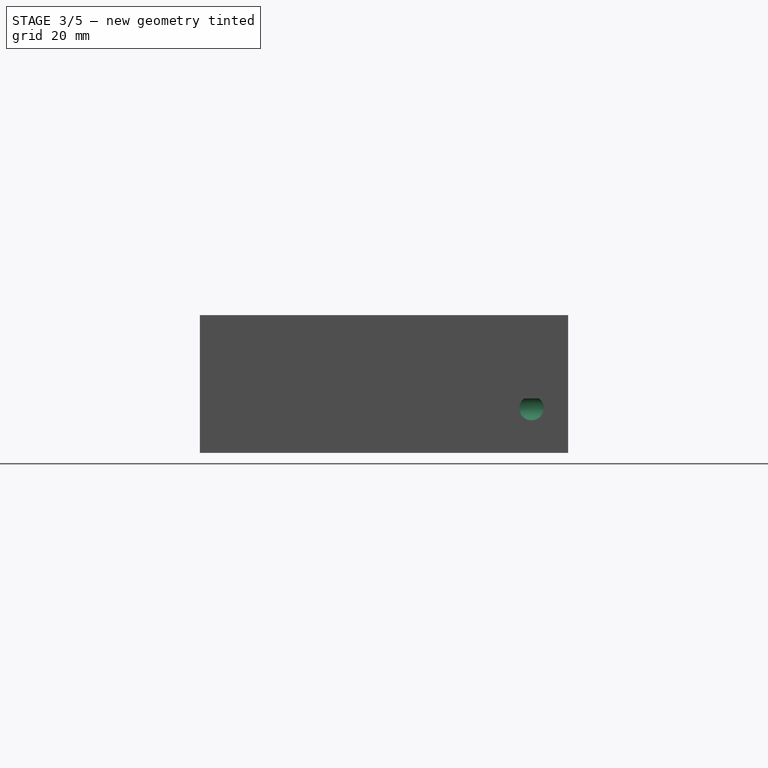
[diagram: stage 3 of 5 — right view after this stage's code; geometry added in this stage tinted green]
FEATURE [Sketcher::SketchObject] Sketch013
  AttachmentOffset = pos=(0,0,21) rot=(0,0,1;0rad)
  ExternalGeometry = -> [ShapeBinder003]
  FullyConstrained = true
  MapMode = 5
  Placement = pos=(0,0,21) rot=(0,0,1;0rad)
  Support = -> [XY_Plane]
  expr: .AttachmentOffset.Base.z = dd.ddWall + 18mm
  sketch-geometry (4):
    g0: Circle CenterX=93.85 CenterY=68.3 CenterZ=0 NormalX=0 NormalY=0 NormalZ=1 AngleXU=0 Radius=2
    g1: Circle CenterX=148.85 CenterY=68.3 CenterZ=0 NormalX=0 NormalY=0 NormalZ=1 AngleXU=0 Radius=2
    g2: GeomPoint X=93.85 Y=71.8 Z=0
    g3: GeomPoint X=148.85 Y=71.8 Z=0
  constraints (8):
    c: Equal(g0,g1)
    c: Horizontal(g0,g1)
    c: Symmetric(g-3,g-3,g2)
    c: Symmetric(g-4,g-4,g3)
    c: Vertical(g0,g2)
    c: Vertical(g1,g3)
    c: Diameter(g0) = 4
    c: DistanceY(g0,g2) = 3.5
FEATURE [PartDesign::Pocket] Pocket006  label="Power_lock_holes"
  BaseFeature = -> Pad006
  Direction = (0,0,-1)
  Length = 6
  Length2 = 5
  Profile = -> Sketch013
  ReferenceAxis = -> Sketch013 [N_Axis]
  Type = 0
FEATURE [PartDesign::Body] Body001  label="Power lock"
  Group = -> [Sketch014,Sketch015,Sketch016,Pad007,Hole]
  Origin = -> Origin001
  Tip = -> Hole
FEATURE [Sketcher::SketchObject] Sketch017
  AttachmentOffset = pos=(0,0,3) rot=(0,0,1;0rad)
  FullyConstrained = true
  MapMode = 5
  Placement = pos=(0,0,3) rot=(0,0,1;0rad)
  Support = -> [XY_Plane]
  expr: .AttachmentOffset.Base.z = dd.ddWall
  expr: Constraints[8] = <<Sketch001>>.Constraints.Xplus
  expr: Constraints[9] = <<Sketch001>>.Constraints.Yplus
  sketch-geometry (4):
    g0: LineSegment StartX=204.2 StartY=123.3 StartZ=0 EndX=180.2 EndY=123.3 EndZ=0
    g1: LineSegment StartX=180.2 StartY=123.3 StartZ=0 EndX=180.2 EndY=91.3 EndZ=0
    g2: LineSegment StartX=180.2 StartY=91.3 StartZ=0 EndX=204.2 EndY=91.3 EndZ=0
    g3: LineSegment StartX=204.2 StartY=91.3 StartZ=0 EndX=204.2 EndY=123.3 EndZ=0
  constraints (12):
    c: Coincident(g0,g1)
    c: Coincident(g1,g2)
    c: Coincident(g2,g3)
    c: Coincident(g3,g0)
    c: Horizontal(g0)
    c: Horizontal(g2)
    c: Vertical(g1)
    c: Vertical(g3)
    c: DistanceX(g-1,g0) = 204.2
    c: DistanceY(g-1,g0) = 123.3
    c: DistanceX(g2,g2) = 24  'PBwidth'
    c: DistanceY(g1,g1) = 32  'PBheight'
FEATURE [PartDesign::Pad] Pad008  label="PwCord block"
  BaseFeature = -> Pocket006
  Direction = (0,0,1)
  Length = 16
  Length2 = 10
  Profile = -> Sketch017
  ReferenceAxis = -> Sketch017 [N_Axis]
  Refine = true
  Type = 0
  expr: Length = dd.ddPCblockHeight
FEATURE [Sketcher::SketchObject] Sketch018
  AttachmentOffset = pos=(0,0,204.2) rot=(0,0,1;0rad)
  FullyConstrained = true
  MapMode = 5
  Placement = pos=(204.2,-4.53e-14,4.53e-14) rot=(0.57735,0.57735,0.57735;2.0944rad)
  Support = -> [YZ_Plane]
  expr: .AttachmentOffset.Base.z = <<Sketch001>>.Constraints.Xplus
  expr: Constraints[0] = dd.ddPowerCord
  expr: Constraints[1] = dd.ddCordChannel
  expr: Constraints[2] = <<Sketch001>>.Constraints.Yplus - 1.5 * dd.ddPowerCord
  sketch-geometry (1):
    g0: Circle CenterX=110.55 CenterY=15.6 CenterZ=0 NormalX=0 NormalY=0 NormalZ=1 AngleXU=0 Radius=4.25
  constraints (3):
    c: Diameter(g0) = 8.5
    c: DistanceY(g-1,g0) = 15.6
    c: DistanceX(g-1,g0) = 110.55
FEATURE [Sketcher::SketchObject] Sketch019
  AttachmentOffset = pos=(0,0,15.6) rot=(0,0,1;0rad)
  ExternalGeometry = -> [Sketch018]
  FullyConstrained = true
  MapMode = 5
  Placement = pos=(0,0,15.6) rot=(0,0,1;0rad)
  Support = -> [XY_Plane]
  expr: .AttachmentOffset.Base.z = dd.ddCordChannel
  expr: Constraints[7] = <<Sketch017>>.Constraints.PBwidth - dd.ddPowerCord
  sketch-geometry (4):
    g0: GeomPoint X=204.2 Y=110.55 Z=0
    g1: LineSegment StartX=204.2 StartY=110.55 StartZ=0 EndX=198.7 EndY=110.55 EndZ=0
    g2: ArcOfCircle CenterX=198.7 CenterY=100.55 CenterZ=0 NormalX=0 NormalY=0 NormalZ=1 AngleXU=0 Radius=10 StartAngle=1.5708 EndAngle=3.14159
    g3: LineSegment StartX=188.7 StartY=100.55 StartZ=0 EndX=188.7 EndY=86.55 EndZ=0
  constraints (10):
    c: Symmetric(g-3,g-3,g0)
    c: Coincident(g1,g0)
    c: Horizontal(g1)
    c: Tangent(g1,g2) = -1.5708
    c: Coincident(g2,g3)
    c: Vertical(g3)
    c: Diameter(g2) = 20
    c: DistanceX(g3,g1) = 15.5
    c: DistanceY(g3,g1) = 24
    c: Horizontal(g2,g2)
FEATURE [PartDesign::SubtractivePipe] SubtractivePipe  label="PwCordChannel"
  AuxilleryCurvelinear = true
  AuxillerySpineTangent = false
  BaseFeature = -> Pad008
  Binormal = (0,0,0)
  Mode = 0
  Profile = -> Sketch018
  Spine = -> Sketch019
  SpineTangent = false
  Transformation = 0
  Transition = 0
FEATURE [Sketcher::SketchObject] Sketch020
  AttachmentOffset = pos=(0,0,19) rot=(0,0,1;0rad)
  FullyConstrained = true
  MapMode = 5
  Placement = pos=(0,0,19) rot=(0,0,1;0rad)
  Support = -> [XY_Plane]
  expr: .AttachmentOffset.Base.z = dd.ddWall + dd.ddPCblockHeight
  expr: Constraints[2] = <<Sketch001>>.Constraints.Xplus - <<Sketch017>>.Constraints.PBwidth + 5mm
  expr: Constraints[3] = <<Sketch001>>.Constraints.Yplus - dd.ddWall - 5mm
  expr: Constraints[4] = <<Sketch017>>.Constraints.PBwidth - 10mm - dd.ddWall
  expr: Constraints[5] = <<Sketch017>>.Constraints.PBheight - 10mm - dd.ddWall
  sketch-geometry (2):
    g0: Circle CenterX=185.2 CenterY=115.3 CenterZ=0 NormalX=0 NormalY=0 NormalZ=1 AngleXU=0 Radius=2
    g1: Circle CenterX=196.2 CenterY=96.3 CenterZ=0 NormalX=0 NormalY=0 NormalZ=1 AngleXU=0 Radius=2
  constraints (6):
    c: Equal(g0,g1)
    c: Diameter(g0) = 4
    c: DistanceX(g-1,g0) = 185.2
    c: DistanceY(g-1,g0) = 115.3
    c: DistanceX(g0,g1) = 11
    c: DistanceY(g1,g0) = 19
FEATURE [PartDesign::Pocket] Pocket007  label="PwCordLock_holes"
  BaseFeature = -> SubtractivePipe
  Direction = (0,0,-1)
  Length = 6
  Length2 = 5
  Profile = -> Sketch020
  ReferenceAxis = -> Sketch020 [N_Axis]
  Type = 0
FEATURE [PartDesign::Body] Body002  label="PowerCordLock"
  Group = -> [ShapeBinder006,Sketch021,Pad009,Sketch022,Hole001]
  Origin = -> Origin002
  Tip = -> Hole001
FEATURE [Sketcher::SketchObject] Sketch023
  AttachmentOffset = pos=(0,0,68.375) rot=(0,0,1;0rad)
  ExternalGeometry = -> [ShapeBinder004]
  FullyConstrained = true
  MapMode = 5
  Placement = pos=(68.375,-1.52e-14,1.52e-14) rot=(0.57735,0.57735,0.57735;2.0944rad)
  Support = -> [YZ_Plane]
  expr: .AttachmentOffset.Base.z = <<Sketch>>.Constraints.InnerFace
  expr: Constraints[0] = dd.ddWall + 5mm
  sketch-geometry (2):
    g0: Circle CenterX=110.304 CenterY=8 CenterZ=0 NormalX=0 NormalY=0 NormalZ=1 AngleXU=0 Radius=2.5
    g1: Circle CenterX=78.304 CenterY=8 CenterZ=0 NormalX=0 NormalY=0 NormalZ=1 AngleXU=0 Radius=2.5
  constraints (6):
    c: DistanceY(g-1,g0) = 8
    c: DistanceX(g-3,g0) = 12
    c: Diameter(g0) = 5
    c: Horizontal(g1,g0)
    c: Equal(g1,g0)
    c: DistanceX(g1,g0) = 32
FEATURE [PartDesign::Pocket] Pocket008  label="Cable holes"
  BaseFeature = -> Pocket007
  Direction = (-1,2e-16,-3e-16)
  Length = 3
  Length2 = 5
  Profile = -> Sketch023
  ReferenceAxis = -> Sketch023 [N_Axis]
  Type = 0
  expr: Length = dd.ddWall
FEATURE [Sketcher::SketchObject] Sketch026
  AttachmentOffset = pos=(0,0,2) rot=(0,0,1;0rad)
  ExternalGeometry = -> [ShapeBinder007]
  FullyConstrained = true
  MapMode = 5
  Placement = pos=(0,-2,-4e-16) rot=(1,0,0;1.5708rad)
  Support = -> [XZ_Plane003]
  expr: .AttachmentOffset.Base.z = dd.ddSlack
  expr: Constraints[0] = dd.ddCoverBoltDist
  expr: Constraints[1] = dd.ddCoverInset / 2
  sketch-geometry (1):
    g0: Circle CenterX=30 CenterY=-5 CenterZ=0 NormalX=0 NormalY=0 NormalZ=1 AngleXU=0 Radius=2
  constraints (3):
    c: DistanceX(g-3,g0) = 32
    c: DistanceY(g0,g-1) = 5
    c: Diameter(g0) = 4
FEATURE [PartDesign::ShapeBinder] ShapeBinder008  label="SB_Walls"
  Support = -> [Pad001]
  TraceSupport = false
FEATURE [Sketcher::SketchObject] Sketch027
  AttachmentOffset = pos=(0,0,5) rot=(0,0,1;0rad)
  ExternalGeometry = -> [ShapeBinder008]
  FullyConstrained = true
  MapMode = 5
  Placement = pos=(0,-5,-1.1e-15) rot=(1,0,0;1.5708rad)
  Support = -> [XZ_Plane]
  expr: .AttachmentOffset.Base.z = dd.ddWall + dd.ddSlack
  expr: Constraints[2] = dd.ddCoverBoltDist
  expr: Constraints[3] = dd.ddCoverBoltDist
  expr: Constraints[5] = dd.ddHeight + dd.ddWall - dd.ddCoverInset / 2
  sketch-geometry (2):
    g0: Circle CenterX=30 CenterY=43 CenterZ=0 NormalX=0 NormalY=0 NormalZ=1 AngleXU=0 Radius=1.6
    g1: Circle CenterX=169.2 CenterY=43 CenterZ=0 NormalX=0 NormalY=0 NormalZ=1 AngleXU=0 Radius=1.6
  constraints (6):
    c: Equal(g0,g1)
    c: Horizontal(g0,g1)
    c: DistanceX(g-3,g0) = 32
    c: DistanceX(g1,g-4) = 32
    c: Diameter(g0) = 3.2
    c: DistanceY(g-1,g0) = 43
FEATURE [PartDesign::Hole] Hole002  label="CoverScrews"
  BaseFeature = -> Pocket008
  CustomThreadClearance = 0
  Depth = 25
  DepthType = 0
  Diameter = 3.2
  DrillForDepth = false
  DrillPoint = 1
  DrillPointAngle = 118
  HoleCutCountersinkAngle = 90
  HoleCutCustomValues = false
  HoleCutDepth = 0
  HoleCutDiameter = 6.1
  HoleCutType = 2
  ModelThread = false
  Profile = -> Sketch027
  Tapered = false
  TaperedAngle = 90
  ThreadClass = 0
  ThreadDepth = 25
  ThreadDepthType = 0
  ThreadDirection = 0
  ThreadFit = 0
  ThreadSize = 0
  ThreadType = 0
  Threaded = false
  UseCustomThreadClearance = false
FEATURE [PartDesign::Plane] DatumPlane
  Length = 255.07
  MapMode = 45
  Placement = pos=(-5,59.15,48) rot=(0,0.707107,0.707107;3.14159rad)
  ResizeMode = 0
  Support = -> [Hole002]
  Width = 98.8701
FEATURE [PartDesign::Mirrored] Mirrored
  BaseFeature = -> Hole002
  MirrorPlane = -> DatumPlane
  Originals = -> [Hole002]
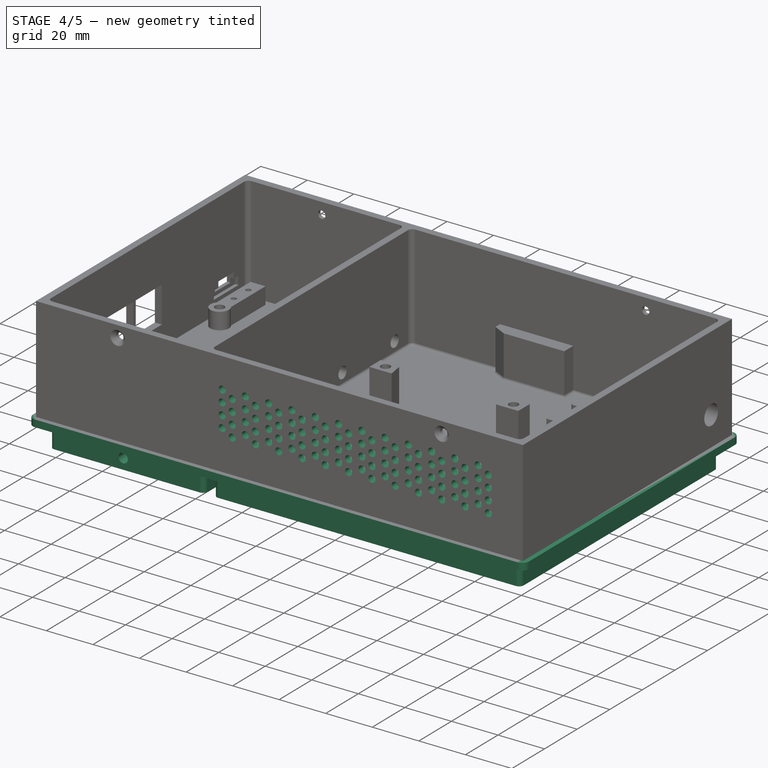
[diagram: stage 4 of 5 — iso view after this stage's code; geometry added in this stage tinted green]
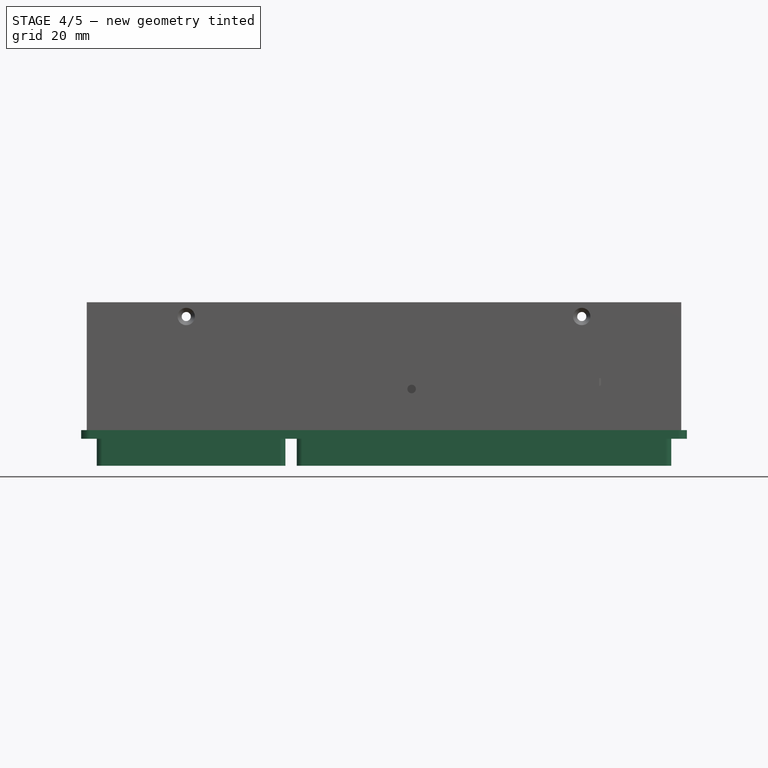
[diagram: stage 4 of 5 — front view after this stage's code; geometry added in this stage tinted green]
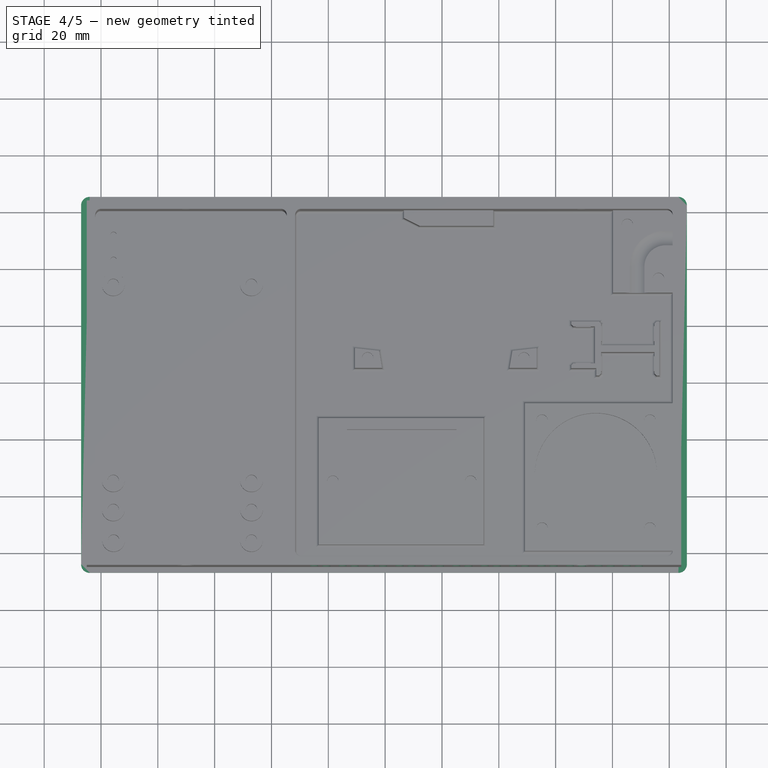
[diagram: stage 4 of 5 — top view after this stage's code; geometry added in this stage tinted green]
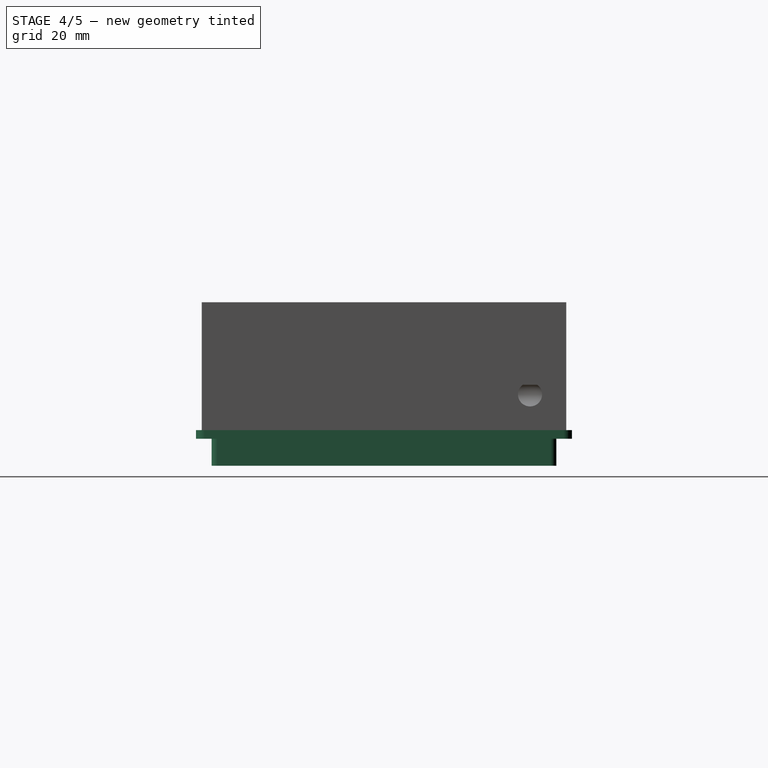
[diagram: stage 4 of 5 — right view after this stage's code; geometry added in this stage tinted green]
FEATURE [PartDesign::ShapeBinder] ShapeBinder007  label="SB_Openings"
  Support = -> [Pocket008]
  TraceSupport = false
FEATURE [Sketcher::SketchObject] Sketch024
  ExternalGeometry = -> [ShapeBinder007]
  FullyConstrained = true
  MapMode = 5
  Support = -> [XY_Plane003]
  expr: Constraints[12] = dd.ddWall + dd.ddSlack
  expr: Constraints[13] = dd.ddWall + dd.ddSlack
  expr: Constraints[6] = dd.ddWall + dd.ddSlack
  expr: Constraints[7] = dd.ddWall + dd.ddSlack
  sketch-geometry (8):
    g0: LineSegment StartX=-4 StartY=125.3 StartZ=0 EndX=203.2 EndY=125.3 EndZ=0
    g1: LineSegment StartX=206.2 StartY=122.3 StartZ=0 EndX=206.2 EndY=-4 EndZ=0
    g2: LineSegment StartX=203.2 StartY=-7 StartZ=0 EndX=-4 EndY=-7 EndZ=0
    g3: LineSegment StartX=-7 StartY=-4 StartZ=0 EndX=-7 EndY=122.3 EndZ=0
    g4: ArcOfCircle CenterX=-4 CenterY=-4 CenterZ=0 NormalX=0 NormalY=0 NormalZ=1 AngleXU=0 Radius=3 StartAngle=3.14159 EndAngle=4.71239
    g5: ArcOfCircle CenterX=-4 CenterY=122.3 CenterZ=0 NormalX=0 NormalY=0 NormalZ=1 AngleXU=0 Radius=3 StartAngle=1.5708 EndAngle=3.14159
    g6: ArcOfCircle CenterX=203.2 CenterY=122.3 CenterZ=0 NormalX=0 NormalY=0 NormalZ=1 AngleXU=0 Radius=3 StartAngle=-9e-16 EndAngle=1.5708
    g7: ArcOfCircle CenterX=203.2 CenterY=-4 CenterZ=0 NormalX=0 NormalY=0 NormalZ=1 AngleXU=0 Radius=3 StartAngle=4.71239 EndAngle=6.28319
  constraints (20):
    c: Horizontal(g0)
    c: Horizontal(g2)
    c: Vertical(g1)
    c: Vertical(g3)
    c: Tangent(g3,g4) = 1.5708
    c: Tangent(g2,g4) = 1.5708
    c: DistanceX(g3,g-5) = 5
    c: DistanceY(g2,g-6) = 5
    c: Tangent(g3,g5) = 1.5708
    c: Tangent(g0,g5) = 1.5708
    c: Tangent(g0,g6) = 1.5708
    c: Tangent(g1,g6) = 1.5708
    c: DistanceY(g-3,g0) = 5
    c: DistanceX(g-4,g1) = 5
    c: Tangent(g2,g7) = 1.5708
    c: Tangent(g1,g7) = 1.5708
    c: Equal(g7,g6)
    c: Equal(g6,g5)
    c: Equal(g5,g4)
    c: Diameter(g4) = 6
FEATURE [PartDesign::Pad] Pad010  label="Plate"
  Direction = (0,0,1)
  Length = 3
  Length2 = 10
  Profile = -> Sketch024
  ReferenceAxis = -> Sketch024 [N_Axis]
  Type = 0
  expr: Length = dd.ddWall
FEATURE [Sketcher::SketchObject] Sketch025
  AttachmentOffset = pos=(0,0,0.5) rot=(0,0,1;0rad)
  ExternalGeometry = -> [ShapeBinder007]
  FullyConstrained = true
  MapMode = 5
  Placement = pos=(0,0,0.5) rot=(0,0,1;0rad)
  Support = -> [XY_Plane003]
  expr: Constraints[120] = dd.ddInsetWidth
  sketch-geometry (52):
    g0: ArcOfCircle CenterX=0.5 CenterY=117.8 CenterZ=0 NormalX=0 NormalY=0 NormalZ=1 AngleXU=0 Radius=2 StartAngle=1.5708 EndAngle=3.14159
    g1: LineSegment StartX=0.5 StartY=119.8 StartZ=0 EndX=62.875 EndY=119.8 EndZ=0
    g2: ArcOfCircle CenterX=62.875 CenterY=117.8 CenterZ=0 NormalX=0 NormalY=0 NormalZ=1 AngleXU=0 Radius=2 StartAngle=-1.8e-15 EndAngle=1.5708
    g3: LineSegment StartX=64.875 StartY=117.8 StartZ=0 EndX=64.875 EndY=0.5 EndZ=0
    g4: ArcOfCircle CenterX=62.875 CenterY=0.5 CenterZ=0 NormalX=0 NormalY=0 NormalZ=1 AngleXU=0 Radius=2 StartAngle=4.71239 EndAngle=6.28319
    g5: LineSegment StartX=62.875 StartY=-1.5 StartZ=0 EndX=0.5 EndY=-1.5 EndZ=0
    g6: ArcOfCircle CenterX=0.5 CenterY=0.5 CenterZ=0 NormalX=0 NormalY=0 NormalZ=1 AngleXU=0 Radius=2 StartAngle=3.14159 EndAngle=4.71239
    g7: LineSegment StartX=-1.5 StartY=0.5 StartZ=0 EndX=-1.5 EndY=117.8 EndZ=0
    g8: GeomPoint X=-1.5 Y=119.8 Z=0
    g9: GeomPoint X=64.875 Y=-1.5 Z=0
    g10: ArcOfCircle CenterX=70.875 CenterY=117.8 CenterZ=0 NormalX=0 NormalY=0 NormalZ=1 AngleXU=0 Radius=2 StartAngle=1.5708 EndAngle=3.14159
    g11: LineSegment StartX=70.875 StartY=119.8 StartZ=0 EndX=198.7 EndY=119.8 EndZ=0
    g12: ArcOfCircle CenterX=198.7 CenterY=117.8 CenterZ=0 NormalX=0 NormalY=0 NormalZ=1 AngleXU=0 Radius=2 StartAngle=1.9e-15 EndAngle=1.5708
    g13: LineSegment StartX=200.7 StartY=117.8 StartZ=0 EndX=200.7 EndY=0.5 EndZ=0
    g14: ArcOfCircle CenterX=198.7 CenterY=0.5 CenterZ=0 NormalX=0 NormalY=0 NormalZ=1 AngleXU=0 Radius=2 StartAngle=4.71239 EndAngle=6.28319
    g15: LineSegment StartX=198.7 StartY=-1.5 StartZ=0 EndX=70.875 EndY=-1.5 EndZ=0
    g16: ArcOfCircle CenterX=70.875 CenterY=0.5 CenterZ=0 NormalX=0 NormalY=0 NormalZ=1 AngleXU=0 Radius=2 StartAngle=3.14159 EndAngle=4.71239
    g17: LineSegment StartX=68.875 StartY=0.5 StartZ=0 EndX=68.875 EndY=117.8 EndZ=0
    g18: GeomPoint X=68.875 Y=119.8 Z=0
    g19: GeomPoint X=200.7 Y=-1.5 Z=0
    g20: ArcOfCircle CenterX=3 CenterY=115.3 CenterZ=0 NormalX=0 NormalY=0 NormalZ=1 AngleXU=0 Radius=1.5 StartAngle=1.5708 EndAngle=3.14159
    g21: LineSegment StartX=3 StartY=116.8 StartZ=0 EndX=60.375 EndY=116.8 EndZ=0
    g22: ArcOfCircle CenterX=60.375 CenterY=115.3 CenterZ=0 NormalX=0 NormalY=0 NormalZ=1 AngleXU=0 Radius=1.5 StartAngle=1.4e-15 EndAngle=1.5708
    g23: LineSegment StartX=61.875 StartY=115.3 StartZ=0 EndX=61.875 EndY=3 EndZ=0
    g24: ArcOfCircle CenterX=60.375 CenterY=3 CenterZ=0 NormalX=0 NormalY=0 NormalZ=1 AngleXU=0 Radius=1.5 StartAngle=4.71239 EndAngle=6.28319
    g25: LineSegment StartX=60.375 StartY=1.5 StartZ=0 EndX=3 EndY=1.5 EndZ=0
    g26: ArcOfCircle CenterX=3 CenterY=3 CenterZ=0 NormalX=0 NormalY=0 NormalZ=1 AngleXU=0 Radius=1.5 StartAngle=3.14159 EndAngle=4.71239
    g27: LineSegment StartX=1.5 StartY=3 StartZ=0 EndX=1.5 EndY=115.3 EndZ=0
    g28: GeomPoint X=1.5 Y=116.8 Z=0
    g29: GeomPoint X=61.875 Y=1.5 Z=0
    g30: ArcOfCircle CenterX=73.375 CenterY=115.3 CenterZ=0 NormalX=0 NormalY=0 NormalZ=1 AngleXU=0 Radius=1.5 StartAngle=1.5708 EndAngle=3.14159
    g31: LineSegment StartX=73.375 StartY=116.8 StartZ=0 EndX=196.2 EndY=116.8 EndZ=0
    g32: ArcOfCircle CenterX=196.2 CenterY=115.3 CenterZ=0 NormalX=0 NormalY=0 NormalZ=1 AngleXU=0 Radius=1.5 StartAngle=3.6e-15 EndAngle=1.5708
    g33: LineSegment StartX=197.7 StartY=115.3 StartZ=0 EndX=197.7 EndY=3 EndZ=0
    g34: ArcOfCircle CenterX=196.2 CenterY=3 CenterZ=0 NormalX=0 NormalY=0 NormalZ=1 AngleXU=0 Radius=1.5 StartAngle=4.71239 EndAngle=6.28319
    g35: LineSegment StartX=196.2 StartY=1.5 StartZ=0 EndX=73.375 EndY=1.5 EndZ=0
    g36: ArcOfCircle CenterX=73.375 CenterY=3 CenterZ=0 NormalX=0 NormalY=0 NormalZ=1 AngleXU=0 Radius=1.5 StartAngle=3.14159 EndAngle=4.71239
    g37: LineSegment StartX=71.875 StartY=3 StartZ=0 EndX=71.875 EndY=115.3 EndZ=0
    g38: GeomPoint X=71.875 Y=116.8 Z=0
    g39: GeomPoint X=197.7 Y=1.5 Z=0
    g40: LineSegment StartX=197.7 StartY=3 StartZ=0 EndX=200.7 EndY=3 EndZ=0
    g41: LineSegment StartX=200.7 StartY=3 StartZ=0 EndX=201.2 EndY=3 EndZ=0
    g42: LineSegment StartX=196.2 StartY=1.5 StartZ=0 EndX=196.2 EndY=-1.5 EndZ=0
    g43: LineSegment StartX=196.2 StartY=-1.5 StartZ=0 EndX=196.2 EndY=-2 EndZ=0
    g44: LineSegment StartX=1.5 StartY=115.3 StartZ=0 EndX=-1.5 EndY=115.3 EndZ=0
    g45: LineSegment StartX=-1.5 StartY=115.3 StartZ=0 EndX=-2 EndY=115.3 EndZ=0
    g46: LineSegment StartX=3 StartY=116.8 StartZ=0 EndX=3 EndY=119.8 EndZ=0
    g47: LineSegment StartX=3 StartY=119.8 StartZ=0 EndX=3 EndY=120.3 EndZ=0
    g48: LineSegment StartX=61.875 StartY=3 StartZ=0 EndX=64.875 EndY=3 EndZ=0
    g49: LineSegment StartX=64.875 StartY=3 StartZ=0 EndX=65.375 EndY=3 EndZ=0
    g50: LineSegment StartX=71.875 StartY=3 StartZ=0 EndX=68.875 EndY=3 EndZ=0
    g51: LineSegment StartX=68.875 StartY=3 StartZ=0 EndX=68.375 EndY=3 EndZ=0
  constraints (132):
    c: Tangent(g0,g1) = 1.5708
    c: Tangent(g1,g2) = 1.5708
    c: Tangent(g2,g3) = 1.5708
    c: Tangent(g3,g4) = 1.5708
    c: Tangent(g4,g5) = 1.5708
    c: Tangent(g5,g6) = 1.5708
    c: Tangent(g6,g7) = 1.5708
    c: Tangent(g7,g0) = 1.5708
    c: Horizontal(g1)
    c: Horizontal(g5)
    c: Vertical(g3)
    c: Vertical(g7)
    c: Equal(g0,g2)
    c: Equal(g2,g4)
    c: Equal(g4,g6)
    c: PointOnObject(g8,g1)
    c: PointOnObject(g8,g7)
    c: PointOnObject(g9,g3)
    c: PointOnObject(g9,g5)
    c: Tangent(g10,g11) = 1.5708
    c: Tangent(g11,g12) = 1.5708
    c: Tangent(g12,g13) = 1.5708
    c: Tangent(g13,g14) = 1.5708
    c: Tangent(g14,g15) = 1.5708
    c: Tangent(g15,g16) = 1.5708
    c: Tangent(g16,g17) = 1.5708
    c: Tangent(g17,g10) = 1.5708
    c: Horizontal(g11)
    c: Horizontal(g15)
    c: Vertical(g13)
    c: Vertical(g17)
    c: Equal(g10,g12)
    c: Equal(g12,g14)
    c: Equal(g14,g16)
    c: PointOnObject(g18,g11)
    c: PointOnObject(g18,g17)
    c: PointOnObject(g19,g13)
    c: PointOnObject(g19,g15)
    c: Equal(g2,g10)
    c: Horizontal(g1,g10)
    c: Horizontal(g4,g15)
    c: Diameter(g0) = 4
    c: Tangent(g20,g21) = 1.5708
    c: Tangent(g21,g22) = 1.5708
    c: Tangent(g22,g23) = 1.5708
    c: Tangent(g23,g24) = 1.5708
    c: Tangent(g24,g25) = 1.5708
    c: Tangent(g25,g26) = 1.5708
    c: Tangent(g26,g27) = 1.5708
    c: Tangent(g27,g20) = 1.5708
    c: Horizontal(g21)
    c: Horizontal(g25)
    c: Vertical(g23)
    c: Vertical(g27)
    c: Equal(g20,g22)
    c: Equal(g22,g24)
    c: Equal(g24,g26)
    c: PointOnObject(g28,g21)
    c: PointOnObject(g28,g27)
    c: PointOnObject(g29,g23)
    c: PointOnObject(g29,g25)
    c: Tangent(g30,g31) = 1.5708
    c: Tangent(g31,g32) = 1.5708
    c: Tangent(g32,g33) = 1.5708
    c: Tangent(g33,g34) = 1.5708
    c: Tangent(g34,g35) = 1.5708
    c: Tangent(g35,g36) = 1.5708
    c: Tangent(g36,g37) = 1.5708
    c: Tangent(g37,g30) = 1.5708
    c: Horizontal(g31)
    c: Horizontal(g35)
    c: Vertical(g33)
    c: Vertical(g37)
    c: Equal(g30,g32)
    c: Equal(g32,g34)
    c: Equal(g34,g36)
    c: PointOnObject(g38,g31)
    c: PointOnObject(g38,g37)
    c: PointOnObject(g39,g33)
    c: PointOnObject(g39,g35)
    c: Equal(g22,g30)
    c: Diameter(g26) = 3
    c: Horizontal(g24,g35)
    c: Coincident(g33,g40)
    c: PointOnObject(g40,g13)
    c: Horizontal(g40)
    c: Coincident(g40,g41)
    c: PointOnObject(g41,g-18)
    c: Horizontal(g41)
    c: Coincident(g42,g34)
    c: PointOnObject(g42,g15)
    c: Vertical(g42)
    c: Coincident(g43,g42)
    c: PointOnObject(g43,g-17)
    c: Vertical(g43)
    c: Coincident(g44,g20)
    c: PointOnObject(g44,g7)
    c: Horizontal(g44)
    c: Coincident(g45,g44)
    c: PointOnObject(g45,g-15)
    c: Horizontal(g45)
    c: Coincident(g46,g20)
    c: PointOnObject(g46,g1)
    c: Vertical(g46)
    c: Coincident(g47,g46)
    c: PointOnObject(g47,g-14)
    c: Vertical(g47)
    c: Coincident(g48,g23)
    c: PointOnObject(g48,g3)
    c: Horizontal(g48)
    c: Coincident(g49,g48)
    c: PointOnObject(g49,g-12)
    c: Horizontal(g49)
    c: Coincident(g50,g36)
    c: PointOnObject(g50,g17)
    c: Horizontal(g50)
    c: Coincident(g51,g50)
    c: PointOnObject(g51,g-13)
    c: Horizontal(g51)
    c: DistanceY(g47,g47) = 0.5
    c: DistanceY(g46,g46) = 3
    c: Equal(g47,g45)
    c: Equal(g45,g49)
    c: Equal(g49,g51)
    c: Equal(g51,g41)
    c: Equal(g41,g43)
    c: Equal(g40,g42)
    c: Equal(g42,g48)
    c: Equal(g48,g50)
    c: Equal(g50,g46)
    c: Equal(g46,g44)
    c: Horizontal(g21,g30)
FEATURE [PartDesign::Pad] Pad011  label="Inset"
  BaseFeature = -> Pad010
  Direction = (0,0,1)
  Length = 10
  Length2 = 10
  Profile = -> Sketch025
  ReferenceAxis = -> Sketch025 [N_Axis]
  Reversed = true
  Type = 0
  expr: Length = dd.ddCoverInset
FEATURE [Sketcher::SketchObject] Sketch028
  ExternalGeometry = -> [ShapeBinder007]
  FullyConstrained = true
  MapMode = 5
  Support = -> [XY_Plane003]
  expr: Constraints[28] = dd.ddCoverBoltDist
  sketch-geometry (11):
    g0: LineSegment StartX=12 StartY=-6 StartZ=0 EndX=15.8544 EndY=-6 EndZ=0
    g1: ArcOfCircle CenterX=15.8544 CenterY=-15.9129 CenterZ=0 NormalX=0 NormalY=0 NormalZ=1 AngleXU=0 Radius=9.91294 StartAngle=0.324488 EndAngle=1.5708
    g2: LineSegment StartX=25.25 StartY=-12.7525 StartZ=0 EndX=26.3131 EndY=-15.9129 EndZ=0
    g3: ArcOfCircle CenterX=32 CenterY=-14 CenterZ=0 NormalX=0 NormalY=0 NormalZ=1 AngleXU=0 Radius=6 StartAngle=3.46608 EndAngle=5.9587
    g4: LineSegment StartX=37.6869 StartY=-15.9129 StartZ=0 EndX=38.75 EndY=-12.7525 EndZ=0
    g5: ArcOfCircle CenterX=48.1456 CenterY=-15.9129 CenterZ=0 NormalX=0 NormalY=0 NormalZ=1 AngleXU=0 Radius=9.91294 StartAngle=1.57079 EndAngle=2.8171
    g6: LineSegment StartX=48.1456 StartY=-6 StartZ=0 EndX=52 EndY=-6 EndZ=0
    g7: LineSegment StartX=52 StartY=-6 StartZ=0 EndX=52 EndY=-2 EndZ=0
    g8: LineSegment StartX=52 StartY=-2 StartZ=0 EndX=12 EndY=-2 EndZ=0
    g9: LineSegment StartX=12 StartY=-2 StartZ=0 EndX=12 EndY=-6 EndZ=0
    g10: Circle CenterX=32 CenterY=-14 CenterZ=0 NormalX=0 NormalY=0 NormalZ=1 AngleXU=0 Radius=2.1
  constraints (30):
    c: Horizontal(g0)
    c: Tangent(g0,g1) = 1.5708
    c: Tangent(g2,g3) = -1.5708
    c: Tangent(g4,g5) = 1.5708
    c: Coincident(g5,g6)
    c: Horizontal(g6)
    c: Coincident(g6,g7)
    c: Vertical(g7)
    c: Coincident(g7,g8)
    c: Horizontal(g8)
    c: Coincident(g8,g9)
    c: Coincident(g9,g0)
    c: Vertical(g9)
    c: Horizontal(g0,g5)
    c: Equal(g0,g6)
    c: Equal(g2,g4)
    c: Equal(g1,g5)
    c: Tangent(g1,g2) = 1.5708
    c: Tangent(g3,g4) = -1.5708
    c: Horizontal(g2,g3)
    c: DistanceY(g6,g7) = 4
    c: DistanceX(g8,g8) = 40
    c: Coincident(g10,g3)
    c: Diameter(g10) = 4.2
    c: DistanceY(g3,g8) = 12
    c: Diameter(g3) = 12
    c: Horizontal(g1,g2)
    c: DistanceX(g1,g4) = 13.5
    c: DistanceX(g-3,g3) = 32
    c: Horizontal(g8,g-3)
FEATURE [Sketcher::SketchObject] Sketch029
  AttachmentOffset = pos=(0,0.5,0) rot=(0,0,1;0rad)
  FullyConstrained = true
  MapMode = 5
  Placement = pos=(0,-1e-16,0.5) rot=(1,0,0;1.5708rad)
  Support = -> [XZ_Plane003]
  expr: Constraints[10] = dd.ddCoverBoltDist - dd.ddSlack
  expr: Constraints[12] = dd.ddCoverInset
  sketch-geometry (5):
    g0: LineSegment StartX=22 StartY=0 StartZ=0 EndX=38 EndY=0 EndZ=0
    g1: LineSegment StartX=38 StartY=0 StartZ=0 EndX=38 EndY=-10 EndZ=0
    g2: LineSegment StartX=38 StartY=-10 StartZ=0 EndX=22 EndY=-10 EndZ=0
    g3: LineSegment StartX=22 StartY=-10 StartZ=0 EndX=22 EndY=0 EndZ=0
    g4: GeomPoint X=30 Y=-10 Z=0
  constraints (13):
    c: Coincident(g0,g1)
    c: Coincident(g1,g2)
    c: Coincident(g2,g3)
    c: Coincident(g3,g0)
    c: Horizontal(g0)
    c: Horizontal(g2)
    c: Vertical(g1)
    c: Vertical(g3)
    c: PointOnObject(g0,g-1)
    c: Symmetric(g2,g1,g4)
    c: DistanceX(g-1,g4) = 30
    c: DistanceX(g2,g2) = 16
    c: DistanceY(g3,g3) = 10
FEATURE [PartDesign::Pad] Pad013  label="Screw block"
  BaseFeature = -> Pad011
  Direction = (0,-1,-2e-16)
  Length = 6
  Length2 = 10
  Profile = -> Sketch029
  ReferenceAxis = -> Sketch029 [N_Axis]
  Refine = true
  Reversed = true
  Type = 0
FEATURE [PartDesign::Pocket] Pocket009  label="CoverThreads"
  BaseFeature = -> Pad013
  Direction = (0,1,2e-16)
  Length = 12
  Length2 = 5
  Profile = -> Sketch026
  ReferenceAxis = -> Sketch026 [N_Axis]
  Type = 0
FEATURE [PartDesign::Body] Body003  label="Cover"
  Group = -> [ShapeBinder007,Sketch024,Pad010,Sketch025,Pad011,Pad013,Sketch026,Pocket009,Sketch028,Pad012,DatumPlane001,DatumPlane002,Sketch029,MultiTransform,Mirrored001,Mirrored002,Fillet003]
  Origin = -> Origin003
  Placement = pos=(0,0,48) rot=(0,0,1;0rad)
  Tip = -> Fillet003
  expr: .Placement.Base.z = dd.ddWall + dd.ddHeight
FEATURE [Sketcher::SketchObject] Sketch030
  AttachmentOffset = pos=(0,0,5) rot=(0,0,1;0rad)
  FullyConstrained = true
  MapMode = 5
  Placement = pos=(0,-5,-1.1e-15) rot=(1,0,0;1.5708rad)
  Support = -> [XZ_Plane]
  expr: .AttachmentOffset.Base.z = dd.ddWall + dd.ddSlack
  expr: Constraints[1] = dd.ddHeight - dd.ddCoverInset
  sketch-geometry (19):
    g0: Circle CenterX=75 CenterY=35 CenterZ=0 NormalX=0 NormalY=0 NormalZ=1 AngleXU=0 Radius=1.5
    g1: Circle CenterX=75 CenterY=30 CenterZ=0 NormalX=0 NormalY=0 NormalZ=1 AngleXU=0 Radius=1.5
    g2: Circle CenterX=75 CenterY=25 CenterZ=0 NormalX=0 NormalY=0 NormalZ=1 AngleXU=0 Radius=1.5
    g3: Circle CenterX=79.3301 CenterY=32.5 CenterZ=0 NormalX=0 NormalY=0 NormalZ=1 AngleXU=0 Radius=1.5
    g4: Circle CenterX=79.3301 CenterY=27.5 CenterZ=0 NormalX=0 NormalY=0 NormalZ=1 AngleXU=0 Radius=1.5
    g5: LineSegment StartX=75 StartY=35 StartZ=0 EndX=79.3301 EndY=32.5 EndZ=0
    g6: LineSegment StartX=75 StartY=30 StartZ=0 EndX=79.3301 EndY=32.5 EndZ=0
    g7: LineSegment StartX=75 StartY=30 StartZ=0 EndX=75 EndY=35 EndZ=0
    g8: LineSegment StartX=75 StartY=30 StartZ=0 EndX=79.3301 EndY=27.5 EndZ=0
    g9: LineSegment StartX=79.3301 StartY=27.5 StartZ=0 EndX=75 EndY=25 EndZ=0
    g10: LineSegment StartX=75 StartY=30 StartZ=0 EndX=75 EndY=25 EndZ=0
    g11: Circle CenterX=79.3301 CenterY=22.5 CenterZ=0 NormalX=0 NormalY=0 NormalZ=1 AngleXU=0 Radius=1.5
    g12: Circle CenterX=75 CenterY=20 CenterZ=0 NormalX=0 NormalY=0 NormalZ=1 AngleXU=0 Radius=1.5
    g13: Circle CenterX=79.3301 CenterY=17.5 CenterZ=0 NormalX=0 NormalY=0 NormalZ=1 AngleXU=0 Radius=1.5
    g14: LineSegment StartX=75 StartY=25 StartZ=0 EndX=75 EndY=20 EndZ=0
    g15: LineSegment StartX=79.3301 StartY=22.5 StartZ=0 EndX=75 EndY=20 EndZ=0
    g16: LineSegment StartX=79.3301 StartY=17.5 StartZ=0 EndX=79.3301 EndY=22.5 EndZ=0
    g17: LineSegment StartX=79.3301 StartY=17.5 StartZ=0 EndX=75 EndY=20 EndZ=0
    g18: LineSegment StartX=79.3301 StartY=22.5 StartZ=0 EndX=75 EndY=25 EndZ=0
  constraints (46):
    c: Diameter(g0) = 3
    c: DistanceY(g-1,g0) = 35
    c: Equal(g0,g3)
    c: Equal(g3,g1)
    c: Equal(g1,g4)
    c: Equal(g4,g2)
    c: Vertical(g0,g1)
    c: Vertical(g1,g2)
    c: Vertical(g3,g4)
    c: Coincident(g5,g0)
    c: Coincident(g5,g3)
    c: Coincident(g6,g1)
    c: Coincident(g6,g3)
    c: Coincident(g7,g1)
    c: Coincident(g7,g0)
    c: Coincident(g8,g1)
    c: Coincident(g8,g4)
    c: Coincident(g9,g4)
    c: Coincident(g9,g2)
    c: Coincident(g10,g1)
    c: Coincident(g10,g2)
    c: Equal(g6,g5)
    c: Equal(g5,g7)
    c: Equal(g7,g10)
    c: Equal(g10,g8)
    c: DistanceY(g10,g10) = 5
    c: DistanceX(g-1,g2) = 75
    c: Vertical(g2,g12)
    c: Vertical(g4,g11)
    c: Vertical(g11,g13)
    c: Equal(g0,g11)
    c: Equal(g11,g12)
    c: Equal(g12,g13)
    c: Coincident(g14,g2)
    c: Coincident(g14,g12)
    c: Coincident(g15,g11)
    c: Coincident(g15,g12)
    c: Coincident(g16,g13)
    c: Coincident(g16,g11)
    c: Coincident(g17,g13)
    c: Coincident(g17,g12)
    c: Coincident(g18,g11)
    c: Coincident(g18,g2)
    c: Equal(g16,g9)
    c: Equal(g9,g18)
    c: Equal(g18,g17)
FEATURE [PartDesign::Pocket] Pocket010  label="Ventilation"
  BaseFeature = -> Mirrored
  Direction = (0,1,2e-16)
  Length = 3
  Length2 = 5
  Profile = -> Sketch030
  ReferenceAxis = -> Sketch030 [N_Axis]
  Type = 0
  expr: Length = dd.ddWall
FEATURE [PartDesign::LinearPattern] LinearPattern
  BaseFeature = -> Pocket010
  Direction = -> Sketch030 [H_Axis]
  Length = 110
  Occurrences = 12
  Originals = -> [Pocket010]
FEATURE [PartDesign::Fillet] Fillet
  Base = -> LinearPattern [Face175]
  BaseFeature = -> LinearPattern
  Radius = 1
  SupportTransform = false
  UseAllEdges = false
FEATURE [PartDesign::Fillet] Fillet004
  Base = -> Fillet [Face178]
  BaseFeature = -> Fillet
  Radius = 1
  SupportTransform = false
  UseAllEdges = false
FEATURE [PartDesign::Body] Body  label="Box"
  Group = -> [ShapeBinder,ShapeBinder001,ShapeBinder003,ShapeBinder004,Sketch001,Pad,Sketch,Pad001,Sketch002,Pocket,Pad005,Sketch003,Pocket001,Sketch004,Pad002,Sketch005,Pocket002,Sketch006,Pocket003,ShapeBinder005,Sketch007,Pocket004,Sketch008,Pad003,Sketch009,Pocket005,Sketch010,Pad004,Sketch011,Boolean,Sketch012,Pad006,Sketch013,Pocket006,Sketch017,Pad008,Sketch018,Sketch019,SubtractivePipe,Sketch020,+13 more]
  Origin = -> Origin
  Tip = -> Fillet004
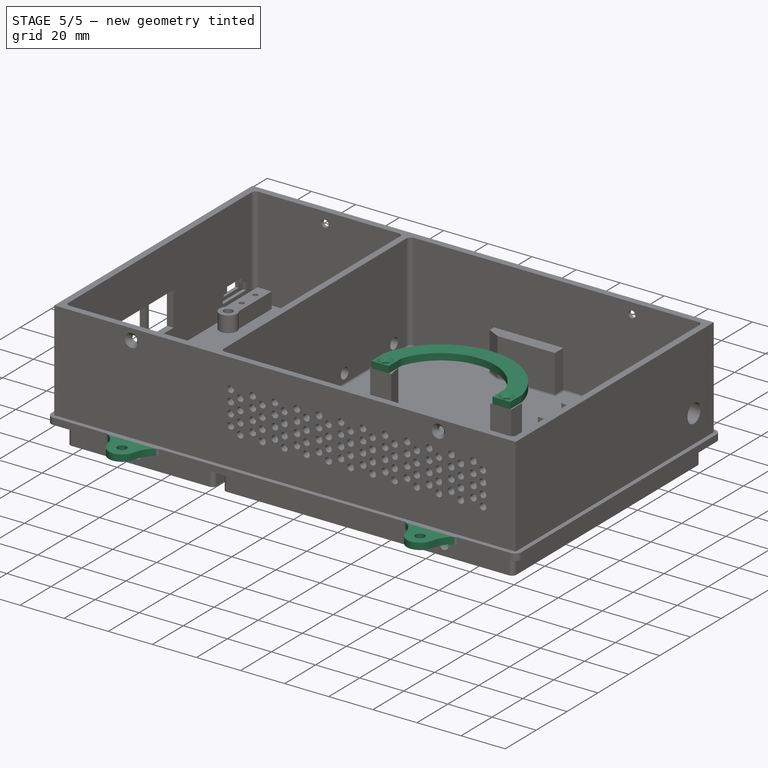
[diagram: stage 5 of 5 — iso view after this stage's code; geometry added in this stage tinted green]
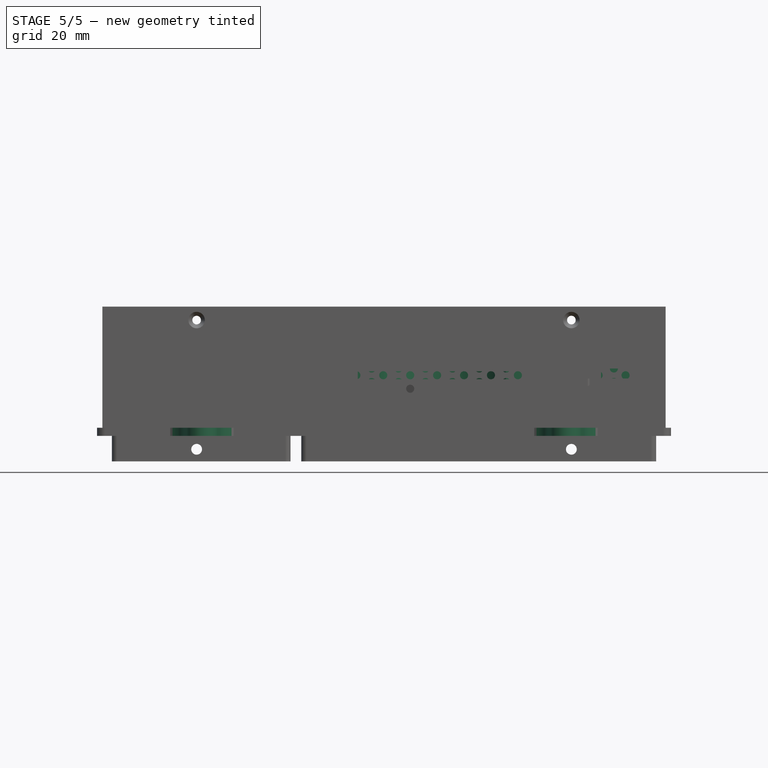
[diagram: stage 5 of 5 — front view after this stage's code; geometry added in this stage tinted green]
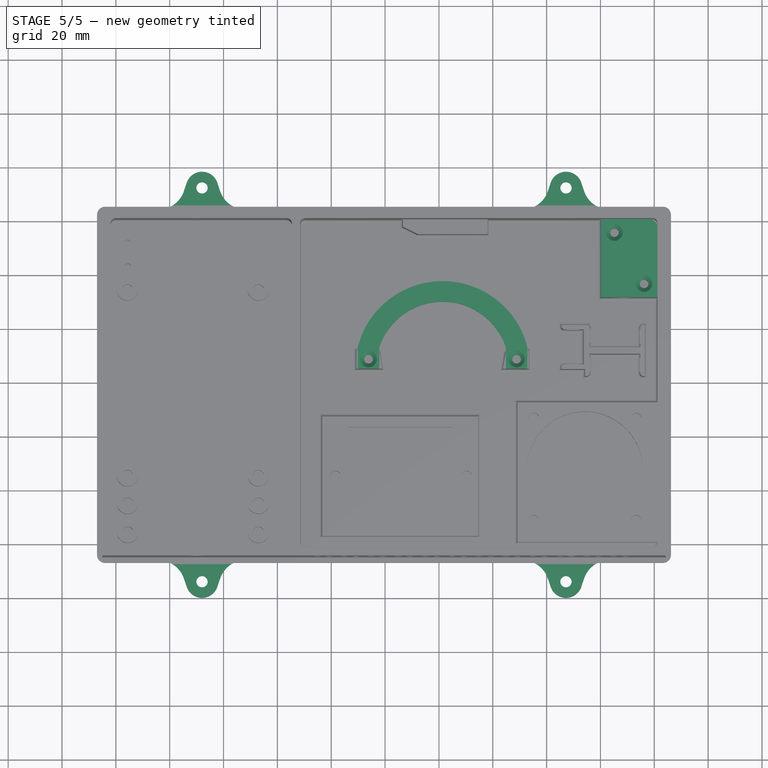
[diagram: stage 5 of 5 — top view after this stage's code; geometry added in this stage tinted green]
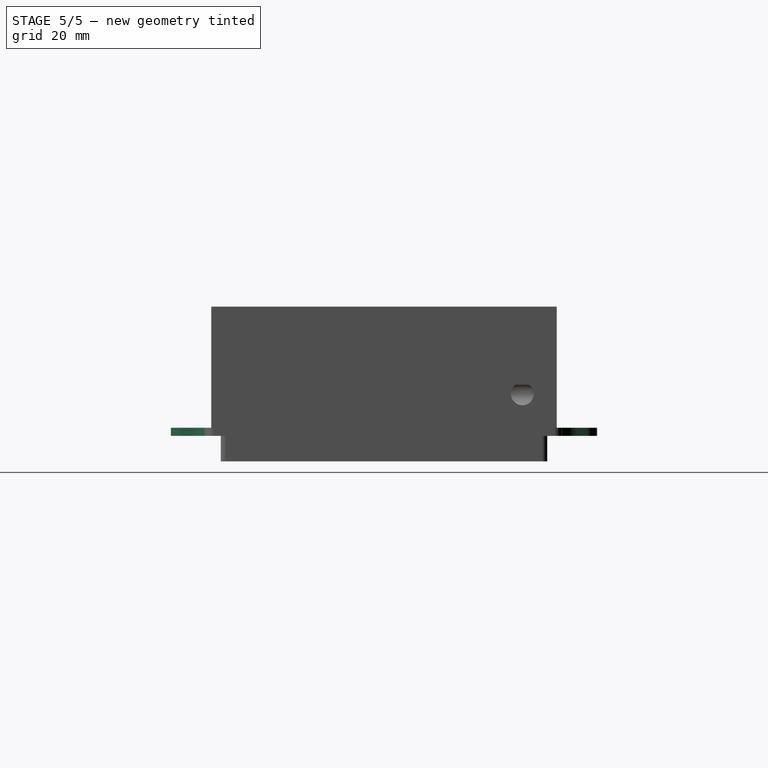
[diagram: stage 5 of 5 — right view after this stage's code; geometry added in this stage tinted green]
FEATURE [Sketcher::SketchObject] Sketch015  label="Power lock copy"
  AttachmentOffset = pos=(0,0,21) rot=(0,0,1;0rad)
  ExternalGeometry = -> [ShapeBinder003]
  FullyConstrained = true
  MapMode = 5
  Placement = pos=(0,0,21) rot=(0,0,1;0rad)
  Support = -> [XY_Plane001]
  expr: .AttachmentOffset.Base.z = dd.ddWall + 18mm
  sketch-geometry (4):
    g0: Circle CenterX=93.85 CenterY=68.3 CenterZ=0 NormalX=0 NormalY=0 NormalZ=1 AngleXU=0 Radius=2
    g1: Circle CenterX=148.85 CenterY=68.3 CenterZ=0 NormalX=0 NormalY=0 NormalZ=1 AngleXU=0 Radius=2
    g2: GeomPoint X=93.85 Y=71.8 Z=0
    g3: GeomPoint X=148.85 Y=71.8 Z=0
  constraints (8):
    c: Equal(g0,g1)
    c: Horizontal(g0,g1)
    c: Symmetric(g-3,g-3,g2)
    c: Symmetric(g-4,g-4,g3)
    c: Vertical(g0,g2)
    c: Vertical(g1,g3)
    c: Diameter(g0) = 4
    c: DistanceY(g0,g2) = 3.5
FEATURE [Sketcher::SketchObject] Sketch014
  AttachmentOffset = pos=(0,0,21) rot=(0,0,1;0rad)
  ExternalGeometry = -> [Sketch015]
  FullyConstrained = true
  MapMode = 5
  Placement = pos=(0,0,21) rot=(0,0,1;0rad)
  Support = -> [XY_Plane001]
  expr: .AttachmentOffset.Base.z = dd.ddWall + 18mm
  sketch-geometry (10):
    g0: LineSegment StartX=89.85 StartY=72.8 StartZ=0 EndX=89.85 EndY=64.8 EndZ=0
    g1: LineSegment StartX=89.85 StartY=64.8 StartZ=0 EndX=97.85 EndY=64.8 EndZ=0
    g2: LineSegment StartX=97.85 StartY=64.8 StartZ=0 EndX=97.85 EndY=72.8 EndZ=0
    g3: LineSegment StartX=144.85 StartY=72.8 StartZ=0 EndX=144.85 EndY=64.8 EndZ=0
    g4: LineSegment StartX=144.85 StartY=64.8 StartZ=0 EndX=152.85 EndY=64.8 EndZ=0
    g5: LineSegment StartX=152.85 StartY=64.8 StartZ=0 EndX=152.85 EndY=72.8 EndZ=0
    g6: GeomPoint X=93.85 Y=64.8 Z=0
    g7: GeomPoint X=148.85 Y=64.8 Z=0
    g8: ArcOfCircle CenterX=121.35 CenterY=64.8 CenterZ=0 NormalX=0 NormalY=0 NormalZ=1 AngleXU=0 Radius=32.5 StartAngle=0.24871 EndAngle=2.89288
    g9: ArcOfCircle CenterX=121.35 CenterY=64.8 CenterZ=0 NormalX=0 NormalY=0 NormalZ=1 AngleXU=0 Radius=24.8244 StartAngle=0.32812 EndAngle=2.81347
  constraints (27):
    c: Vertical(g0)
    c: Coincident(g0,g1)
    c: Horizontal(g1)
    c: Coincident(g1,g2)
    c: Vertical(g2)
    c: Vertical(g3)
    c: Coincident(g3,g4)
    c: Horizontal(g4)
    c: Coincident(g4,g5)
    c: Vertical(g5)
    c: Equal(g1,g4)
    c: Equal(g0,g2)
    c: Equal(g2,g3)
    c: Equal(g3,g5)
    c: Symmetric(g0,g1,g6)
    c: Symmetric(g3,g4,g7)
    c: Vertical(g6,g-3)
    c: Vertical(g7,g-4)
    c: Coincident(g8,g0)
    c: Coincident(g8,g5)
    c: Coincident(g9,g2)
    c: Coincident(g9,g3)
    c: Coincident(g9,g8)
    c: DistanceY(g4,g-4) = 3.5
    c: DistanceY(g0,g0) = 8
    c: DistanceX(g1,g1) = 8
    c: Horizontal(g8,g1)
FEATURE [Sketcher::SketchObject] Sketch016
  AttachmentOffset = pos=(0,0,24) rot=(0,0,1;0rad)
  ExternalGeometry = -> [Sketch015]
  FullyConstrained = true
  MapMode = 5
  Placement = pos=(0,0,24) rot=(0,0,1;0rad)
  Support = -> [XY_Plane001]
  expr: .AttachmentOffset.Base.z = 2 * dd.ddWall + 18mm
  sketch-geometry (2):
    g0: Circle CenterX=93.85 CenterY=68.3 CenterZ=0 NormalX=0 NormalY=0 NormalZ=1 AngleXU=0 Radius=1.6
    g1: Circle CenterX=148.85 CenterY=68.3 CenterZ=0 NormalX=0 NormalY=0 NormalZ=1 AngleXU=0 Radius=1.6
  constraints (4):
    c: Coincident(g0,g-3)
    c: Coincident(g1,g-4)
    c: Equal(g1,g0)
    c: Diameter(g0) = 3.2
FEATURE [PartDesign::Pad] Pad007  label="Power  clamp"
  Direction = (0,0,1)
  Length = 3
  Length2 = 10
  Profile = -> Sketch014
  ReferenceAxis = -> Sketch014 [N_Axis]
  Type = 0
  expr: Length = dd.ddWall
FEATURE [PartDesign::Hole] Hole  label="Screws"
  BaseFeature = -> Pad007
  CustomThreadClearance = 0
  Depth = 25
  DepthType = 0
  Diameter = 3.2
  DrillForDepth = false
  DrillPoint = 1
  DrillPointAngle = 118
  HoleCutCountersinkAngle = 90
  HoleCutCustomValues = false
  HoleCutDepth = 0
  HoleCutDiameter = 6.1
  HoleCutType = 2
  ModelThread = false
  Profile = -> Sketch016
  Tapered = false
  TaperedAngle = 90
  ThreadClass = 0
  ThreadDepth = 25
  ThreadDepthType = 0
  ThreadDirection = 0
  ThreadFit = 0
  ThreadSize = 0
  ThreadType = 0
  Threaded = false
  UseCustomThreadClearance = false
FEATURE [PartDesign::ShapeBinder] ShapeBinder006  label="SB_lock_holes"
  Support = -> [Pocket007]
  TraceSupport = false
FEATURE [Sketcher::SketchObject] Sketch021
  AttachmentOffset = pos=(0,0,19) rot=(0,0,1;0rad)
  ExternalGeometry = -> [ShapeBinder006]
  FullyConstrained = true
  MapMode = 5
  Placement = pos=(0,0,19) rot=(0,0,1;0rad)
  Support = -> [XY_Plane002]
  expr: .AttachmentOffset.Base.z = dd.ddWall + dd.ddPCblockHeight
  sketch-geometry (5):
    g0: LineSegment StartX=180.2 StartY=120.3 StartZ=0 EndX=199.2 EndY=120.3 EndZ=0
    g1: LineSegment StartX=201.2 StartY=118.3 StartZ=0 EndX=201.2 EndY=91.3 EndZ=0
    g2: LineSegment StartX=201.2 StartY=91.3 StartZ=0 EndX=180.2 EndY=91.3 EndZ=0
    g3: LineSegment StartX=180.2 StartY=91.3 StartZ=0 EndX=180.2 EndY=120.3 EndZ=0
    g4: ArcOfCircle CenterX=199.2 CenterY=118.3 CenterZ=0 NormalX=0 NormalY=0 NormalZ=1 AngleXU=0 Radius=2 StartAngle=2.8e-15 EndAngle=1.5708
  constraints (12):
    c: Coincident(g1,g2)
    c: Coincident(g2,g3)
    c: Coincident(g3,g0)
    c: Horizontal(g0)
    c: Horizontal(g2)
    c: Vertical(g1)
    c: Vertical(g3)
    c: Coincident(g0,g-3)
    c: Coincident(g1,g-5)
    c: Tangent(g0,g4) = 1.5708
    c: Tangent(g1,g4) = 1.5708
    c: Diameter(g4) = 4
FEATURE [PartDesign::Pad] Pad009  label="Lid"
  Direction = (0,0,1)
  Length = 6
  Length2 = 10
  Profile = -> Sketch021
  ReferenceAxis = -> Sketch021 [N_Axis]
  Type = 0
FEATURE [Sketcher::SketchObject] Sketch022
  AttachmentOffset = pos=(0,0,25) rot=(0,0,1;0rad)
  ExternalGeometry = -> [ShapeBinder006]
  FullyConstrained = true
  MapMode = 5
  Placement = pos=(0,0,25) rot=(0,0,1;0rad)
  Support = -> [XY_Plane002]
  expr: .AttachmentOffset.Base.z = dd.ddWall + dd.ddPCblockHeight + 6mm
  sketch-geometry (2):
    g0: Circle CenterX=185.2 CenterY=115.3 CenterZ=0 NormalX=0 NormalY=0 NormalZ=1 AngleXU=0 Radius=1.6
    g1: Circle CenterX=196.2 CenterY=96.3 CenterZ=0 NormalX=0 NormalY=0 NormalZ=1 AngleXU=0 Radius=1.6
  constraints (4):
    c: Coincident(g0,g-3)
    c: Coincident(g1,g-4)
    c: Equal(g1,g0)
    c: Diameter(g0) = 3.2
FEATURE [PartDesign::Hole] Hole001  label="Screws_2"
  BaseFeature = -> Pad009
  CustomThreadClearance = 0
  Depth = 25
  DepthType = 0
  Diameter = 3.2
  DrillForDepth = false
  DrillPoint = 1
  DrillPointAngle = 118
  HoleCutCountersinkAngle = 90
  HoleCutCustomValues = false
  HoleCutDepth = 0
  HoleCutDiameter = 6.1
  HoleCutType = 2
  ModelThread = false
  Profile = -> Sketch022
  Tapered = false
  TaperedAngle = 90
  ThreadClass = 0
  ThreadDepth = 25
  ThreadDepthType = 0
  ThreadDirection = 0
  ThreadFit = 0
  ThreadSize = 0
  ThreadType = 0
  Threaded = false
  UseCustomThreadClearance = false
FEATURE [PartDesign::Pad] Pad012  label="Hinge"
  BaseFeature = -> Pocket009
  Direction = (0,0,1)
  Length = 3
  Length2 = 10
  Profile = -> Sketch028
  ReferenceAxis = -> Sketch028 [N_Axis]
  Refine = true
  Type = 0
  expr: Length = dd.ddWall
FEATURE [PartDesign::Plane] DatumPlane001
  Length = 60
  MapMode = 45
  Placement = pos=(-7,59.15,3) rot=(0,0.707107,0.707107;3.14159rad)
  ResizeMode = 0
  Support = -> [Pad012]
  Width = 60
FEATURE [PartDesign::Plane] DatumPlane002
  Length = 167.638
  MapMode = 45
  Placement = pos=(99.6,125.3,3) rot=(0.57735,0.57735,0.57735;2.0944rad)
  ResizeMode = 0
  Support = -> [Pad012]
  Width = 67.3378
FEATURE [PartDesign::Mirrored] Mirrored001
  MirrorPlane = -> DatumPlane001
FEATURE [PartDesign::Mirrored] Mirrored002
  MirrorPlane = -> DatumPlane002
FEATURE [PartDesign::MultiTransform] MultiTransform
  BaseFeature = -> Pad012
  Originals = -> [Pad013,Pocket009,Pad012]
  Refine = true
  Transformations = -> [Mirrored001,Mirrored002]
FEATURE [PartDesign::Fillet] Fillet003
  Base = -> MultiTransform [Face39,Face85]
  BaseFeature = -> MultiTransform
  Radius = 1
  SupportTransform = false
  UseAllEdges = false
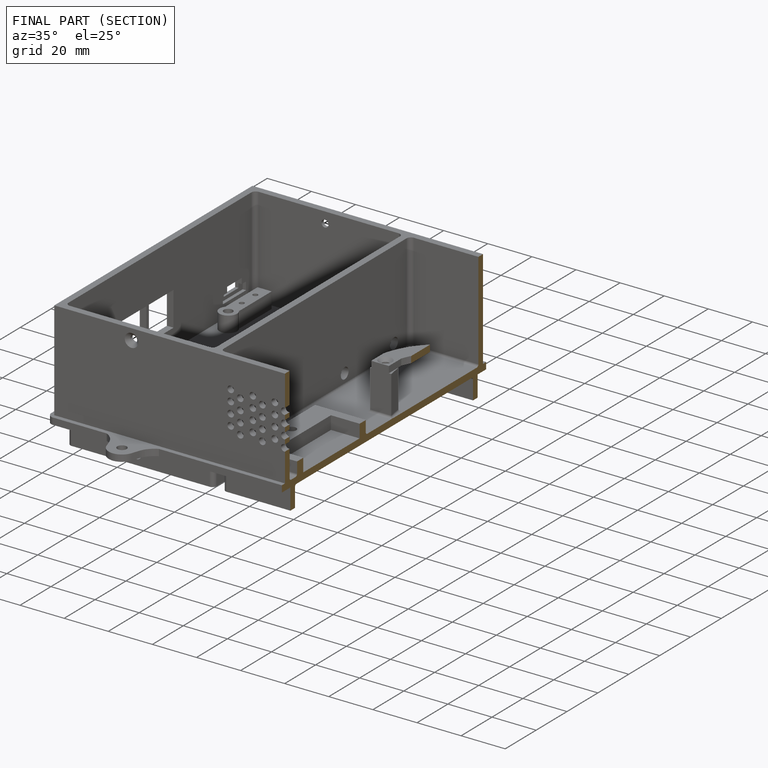
[diagram: finished part — half-section view (interior)]
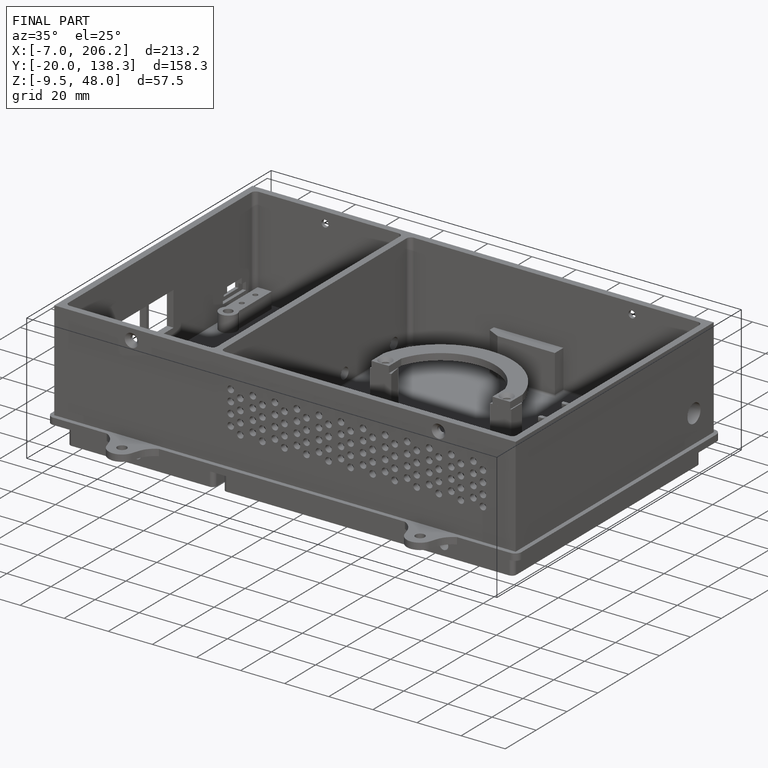
[diagram: finished part — iso view with bounding-box wireframe]
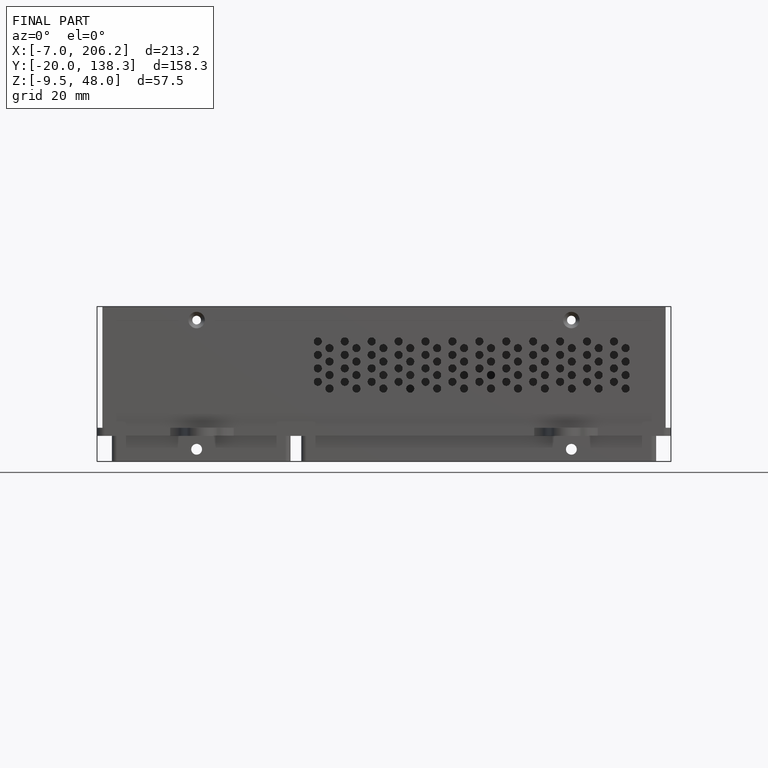
[diagram: finished part — front view with bounding-box wireframe]
